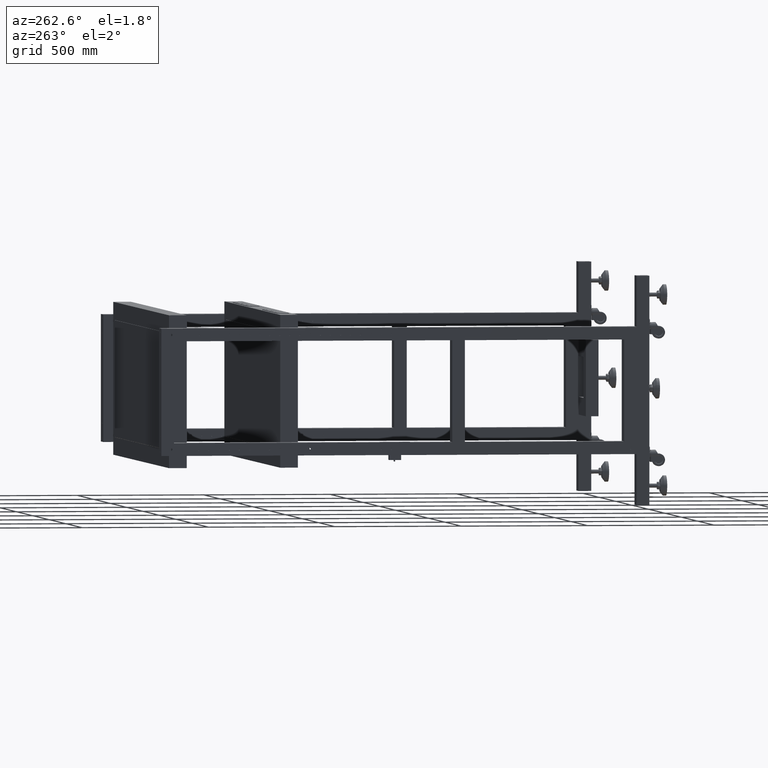
[diagram: clean part render]
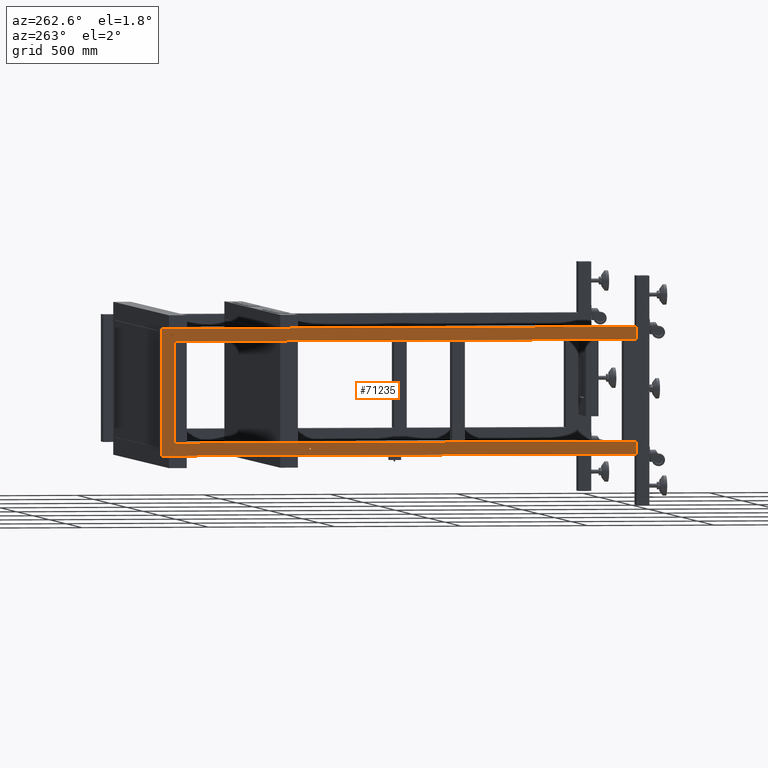
[diagram: same view with one face highlighted and labeled with its STEP entity id]
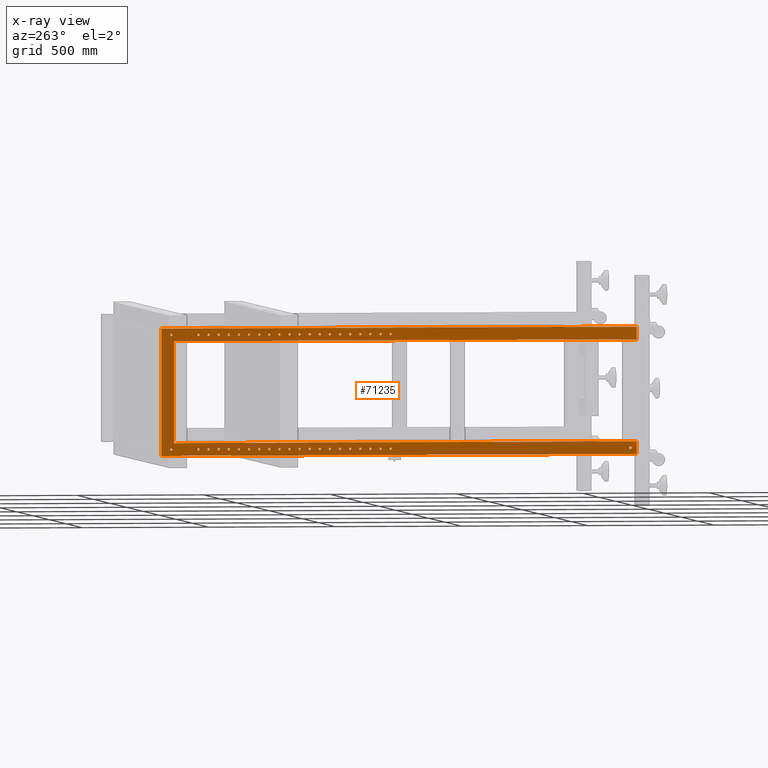
[diagram: x-ray of the same camera — body ghosted, the highlighted face saturated]
A machine part, auxiliary view. The second image highlights one B-rep face of the part: STEP entity #71235.
The next image is the same camera in x-ray: the body ghosted, the highlighted face saturated — about 0% of this face is hidden behind the body in this view.
In plain terms, the highlighted planar face has unit normal (-1, 0, 0).
Its self-contained STEP definition (entity closure, byte-faithful):
#17 = CIRCLE ( 'NONE', #17909, 4.500000000000003553 ) ;
#87 = EDGE_LOOP ( 'NONE', ( #40507, #77485, #27811, #19486, #76841, #42123, #8347, #46814 ) ) ;
#134 = CARTESIAN_POINT ( 'NONE',  ( -1338.172487437185055, 693.9410804020110390, 224.9999999999985789 ) ) ;
#276 = ORIENTED_EDGE ( 'NONE', *, *, #68840, .T. ) ;
#319 = EDGE_CURVE ( 'NONE', #14134, #4145, #36325, .T. ) ;
#370 = CARTESIAN_POINT ( 'NONE',  ( -1338.172487437185055, 609.4410804020111527, 224.9999999999980389 ) ) ;
#460 = AXIS2_PLACEMENT_3D ( 'NONE', #1448, #66912, #12237 ) ;
#487 = DIRECTION ( 'NONE',  ( 0.000000000000000000, 1.000000000000000000, 0.000000000000000000 ) ) ;
#565 = CARTESIAN_POINT ( 'NONE',  ( -1338.172487437185055, 289.4410804020110959, 224.9999999999957936 ) ) ;
#701 = DIRECTION ( 'NONE',  ( 1.000000000000000000, 0.000000000000000000, 0.000000000000000000 ) ) ;
#790 = AXIS2_PLACEMENT_3D ( 'NONE', #36375, #61474, #67881 ) ;
#910 = DIRECTION ( 'NONE',  ( 0.000000000000000000, 0.000000000000000000, -1.000000000000000000 ) ) ;
#923 = CARTESIAN_POINT ( 'NONE',  ( -1338.172487437185055, 209.4410804020110390, -220.5000000000000000 ) ) ;
#949 = CIRCLE ( 'NONE', #25163, 4.500000000000003553 ) ;
#956 = CARTESIAN_POINT ( 'NONE',  ( -1338.172487437185055, 489.4410804020110390, -225.0000000000000000 ) ) ;
#957 = CARTESIAN_POINT ( 'NONE',  ( -1338.172487437185055, 209.4410804020110390, -229.5000000000000000 ) ) ;
#1107 = VERTEX_POINT ( 'NONE', #72759 ) ;
#1336 = CARTESIAN_POINT ( 'NONE',  ( -1338.172487437185055, 769.4410804020110390, -220.5000000000000000 ) ) ;
#1360 = CARTESIAN_POINT ( 'NONE',  ( -1338.172487437185055, 649.4410804020110390, 224.9999999999983231 ) ) ;
#1448 = CARTESIAN_POINT ( 'NONE',  ( -1338.172487437185055, 409.4410804020109822, -225.0000000000000000 ) ) ;
#1483 = DIRECTION ( 'NONE',  ( 1.000000000000000000, 0.000000000000000000, 0.000000000000000000 ) ) ;
#1513 = CIRCLE ( 'NONE', #42282, 4.500000000000003553 ) ;
#1756 = VERTEX_POINT ( 'NONE', #76576 ) ;
#1761 = CIRCLE ( 'NONE', #460, 4.500000000000003553 ) ;
#1979 = DIRECTION ( 'NONE',  ( 0.000000000000000000, 1.000000000000000000, 0.000000000000000000 ) ) ;
#2035 = EDGE_CURVE ( 'NONE', #66259, #57824, #51484, .T. ) ;
#2131 = ORIENTED_EDGE ( 'NONE', *, *, #26263, .T. ) ;
#2198 = ORIENTED_EDGE ( 'NONE', *, *, #3717, .T. ) ;
#2311 = DIRECTION ( 'NONE',  ( 0.000000000000000000, 1.000000000000000000, 0.000000000000000000 ) ) ;
#2385 = ORIENTED_EDGE ( 'NONE', *, *, #38125, .T. ) ;
#2392 = VERTEX_POINT ( 'NONE', #31363 ) ;
#2401 = CARTESIAN_POINT ( 'NONE',  ( -1338.172487437185055, 289.4410804020109822, -225.0000000000000000 ) ) ;
#2439 = DIRECTION ( 'NONE',  ( 0.000000000000000000, 1.000000000000000000, 0.000000000000000000 ) ) ;
#2471 = EDGE_CURVE ( 'NONE', #34427, #30807, #45405, .T. ) ;
#2515 = AXIS2_PLACEMENT_3D ( 'NONE', #47719, #53676, #41715 ) ;
#2576 = ORIENTED_EDGE ( 'NONE', *, *, #4255, .T. ) ;
#2623 = FACE_BOUND ( 'NONE', #7342, .T. ) ;
#2678 = CARTESIAN_POINT ( 'NONE',  ( -1338.172487437185055, 449.4410804020110390, -225.0000000000000000 ) ) ;
#2726 = VERTEX_POINT ( 'NONE', #29216 ) ;
#3030 = FACE_BOUND ( 'NONE', #49964, .T. ) ;
#3061 = VERTEX_POINT ( 'NONE', #75821 ) ;
#3090 = ORIENTED_EDGE ( 'NONE', *, *, #67169, .T. ) ;
#3121 = EDGE_CURVE ( 'NONE', #51565, #17314, #12103, .T. ) ;
#3129 = DIRECTION ( 'NONE',  ( 1.000000000000000000, 0.000000000000000000, -2.775557561562890365E-16 ) ) ;
#3295 = ORIENTED_EDGE ( 'NONE', *, *, #34002, .F. ) ;
#3311 = ORIENTED_EDGE ( 'NONE', *, *, #2471, .T. ) ;
#3430 = FACE_BOUND ( 'NONE', #44493, .T. ) ;
#3561 = DIRECTION ( 'NONE',  ( -1.000000000000000000, -5.551115123125780730E-16, 0.000000000000000000 ) ) ;
#3622 = ORIENTED_EDGE ( 'NONE', *, *, #42257, .F. ) ;
#3636 = EDGE_LOOP ( 'NONE', ( #56261, #75815 ) ) ;
#3675 = AXIS2_PLACEMENT_3D ( 'NONE', #2401, #25584, #31555 ) ;
#3717 = EDGE_CURVE ( 'NONE', #50556, #3824, #1761, .T. ) ;
#3766 = EDGE_CURVE ( 'NONE', #36843, #56206, #18635, .T. ) ;
#3824 = VERTEX_POINT ( 'NONE', #69255 ) ;
#3833 = VERTEX_POINT ( 'NONE', #75622 ) ;
#4073 = VERTEX_POINT ( 'NONE', #67203 ) ;
#4104 = CIRCLE ( 'NONE', #29628, 4.500000000000059508 ) ;
#4145 = VERTEX_POINT ( 'NONE', #12148 ) ;
#4184 = CARTESIAN_POINT ( 'NONE',  ( -1338.172487437186192, 996.4410804020111527, -225.0000000000000000 ) ) ;
#4210 = DIRECTION ( 'NONE',  ( 0.000000000000000000, 1.000000000000000000, 0.000000000000000000 ) ) ;
#4239 = VECTOR ( 'NONE', #44658, 1000.000000000000000 ) ;
#4255 = EDGE_CURVE ( 'NONE', #41761, #37265, #10767, .T. ) ;
#4287 = CARTESIAN_POINT ( 'NONE',  ( -1338.172487437185055, 809.4410804020111527, 224.9999999999994316 ) ) ;
#4347 = CIRCLE ( 'NONE', #36178, 4.500000000000059508 ) ;
#4352 = AXIS2_PLACEMENT_3D ( 'NONE', #42400, #12081, #36412 ) ;
#4450 = EDGE_LOOP ( 'NONE', ( #2131, #22477 ) ) ;
#4546 = CARTESIAN_POINT ( 'NONE',  ( -1338.172487437185055, 809.4410804020111527, 224.9999999999994316 ) ) ;
#4574 = VERTEX_POINT ( 'NONE', #14697 ) ;
#4848 = DIRECTION ( 'NONE',  ( 1.000000000000000000, 0.000000000000000000, -2.775557561562895295E-16 ) ) ;
#4924 = EDGE_CURVE ( 'NONE', #57824, #66259, #65606, .T. ) ;
#5061 = DIRECTION ( 'NONE',  ( 0.000000000000000000, 0.000000000000000000, -1.000000000000000000 ) ) ;
#5091 = CARTESIAN_POINT ( 'NONE',  ( -1338.172487437185055, 524.9410804020111527, 224.9999999999974705 ) ) ;
#5146 = CARTESIAN_POINT ( 'NONE',  ( -1338.172487437185055, 489.4410804020110390, -225.0000000000000000 ) ) ;
#5228 = DIRECTION ( 'NONE',  ( 0.000000000000000000, 0.000000000000000000, -1.000000000000000000 ) ) ;
#5439 = CARTESIAN_POINT ( 'NONE',  ( -1338.172487437185055, 129.4410804020110675, 224.9999999999946851 ) ) ;
#5474 = CIRCLE ( 'NONE', #32185, 4.500000000000059508 ) ;
#5540 = CIRCLE ( 'NONE', #36133, 4.500000000000059508 ) ;
#5563 = DIRECTION ( 'NONE',  ( 0.000000000000000000, 1.000000000000000000, 0.000000000000000000 ) ) ;
#5603 = CARTESIAN_POINT ( 'NONE',  ( -1338.172487437185055, 684.9410804020110390, 224.9999999999985789 ) ) ;
#5779 = AXIS2_PLACEMENT_3D ( 'NONE', #64827, #77566, #72380 ) ;
#5795 = DIRECTION ( 'NONE',  ( 1.000000000000000000, 0.000000000000000000, 0.000000000000000000 ) ) ;
#5848 = ORIENTED_EDGE ( 'NONE', *, *, #19793, .T. ) ;
#6274 = CARTESIAN_POINT ( 'NONE',  ( -1338.172487437186192, 1000.941080402011153, 224.9999999999999716 ) ) ;
#6295 = VERTEX_POINT ( 'NONE', #63539 ) ;
#6307 = EDGE_CURVE ( 'NONE', #36406, #44797, #28740, .T. ) ;
#6415 = DIRECTION ( 'NONE',  ( 0.000000000000000000, 0.000000000000000000, -1.000000000000000000 ) ) ;
#6439 = DIRECTION ( 'NONE',  ( 0.000000000000000000, 1.000000000000000000, 0.000000000000000000 ) ) ;
#6447 = CARTESIAN_POINT ( 'NONE',  ( -1338.172487437185055, 529.4410804020111527, -225.0000000000000000 ) ) ;
#6473 = ORIENTED_EDGE ( 'NONE', *, *, #32003, .T. ) ;
#6699 = VERTEX_POINT ( 'NONE', #50333 ) ;
#6716 = AXIS2_PLACEMENT_3D ( 'NONE', #9059, #39014, #2311 ) ;
#6849 = ORIENTED_EDGE ( 'NONE', *, *, #42458, .T. ) ;
#6935 = EDGE_CURVE ( 'NONE', #54562, #70596, #57636, .T. ) ;
#7067 = EDGE_CURVE ( 'NONE', #20176, #74152, #60980, .T. ) ;
#7081 = DIRECTION ( 'NONE',  ( 0.000000000000000000, 1.000000000000000000, 0.000000000000000000 ) ) ;
#7117 = CARTESIAN_POINT ( 'NONE',  ( -1338.172487437185055, 204.9410804020110959, 224.9999999999952252 ) ) ;
#7120 = EDGE_CURVE ( 'NONE', #78800, #77556, #56395, .T. ) ;
#7216 = DIRECTION ( 'NONE',  ( 1.000000000000000000, 0.000000000000000000, 0.000000000000000000 ) ) ;
#7281 = EDGE_CURVE ( 'NONE', #49363, #55326, #62754, .T. ) ;
#7328 = CIRCLE ( 'NONE', #39219, 4.499999999999948486 ) ;
#7342 = EDGE_LOOP ( 'NONE', ( #64826, #16299 ) ) ;
#7409 = CARTESIAN_POINT ( 'NONE',  ( -1338.172487437185055, 164.9410804020111527, 224.9999999999949409 ) ) ;
#7421 = FACE_BOUND ( 'NONE', #67639, .T. ) ;
#7559 = DIRECTION ( 'NONE',  ( -1.000000000000000000, -5.551115123125780730E-16, 0.000000000000000000 ) ) ;
#7806 = FACE_BOUND ( 'NONE', #50734, .T. ) ;
#7863 = AXIS2_PLACEMENT_3D ( 'NONE', #52090, #32161, #32561 ) ;
#7916 = VERTEX_POINT ( 'NONE', #44722 ) ;
#7945 = CARTESIAN_POINT ( 'NONE',  ( -1338.172487437185055, 329.4410804020110390, -225.0000000000000000 ) ) ;
#7991 = CARTESIAN_POINT ( 'NONE',  ( -1338.172487437185055, 769.4410804020110390, 224.9999999999991473 ) ) ;
#8078 = EDGE_LOOP ( 'NONE', ( #276, #25998 ) ) ;
#8195 = CARTESIAN_POINT ( 'NONE',  ( -1338.172487437185055, 289.4410804020109822, -229.5000000000000000 ) ) ;
#8204 = DIRECTION ( 'NONE',  ( 0.000000000000000000, 1.000000000000000000, 0.000000000000000000 ) ) ;
#8210 = FACE_BOUND ( 'NONE', #32441, .T. ) ;
#8249 = CARTESIAN_POINT ( 'NONE',  ( -1338.172487437185055, 813.9410804020110390, 224.9999999999994316 ) ) ;
#8345 = DIRECTION ( 'NONE',  ( 0.000000000000000000, 0.000000000000000000, -1.000000000000000000 ) ) ;
#8347 = ORIENTED_EDGE ( 'NONE', *, *, #21753, .F. ) ;
#8353 = ORIENTED_EDGE ( 'NONE', *, *, #77385, .T. ) ;
#8464 = AXIS2_PLACEMENT_3D ( 'NONE', #57345, #45777, #9454 ) ;
#8719 = CARTESIAN_POINT ( 'NONE',  ( -1338.172487437185055, 329.4410804020110390, -225.0000000000000000 ) ) ;
#8865 = CIRCLE ( 'NONE', #30519, 4.500000000000003553 ) ;
#9013 = CARTESIAN_POINT ( 'NONE',  ( -1338.172487437185055, 769.4410804020110390, -225.0000000000000000 ) ) ;
#9059 = CARTESIAN_POINT ( 'NONE',  ( -1338.172487437185055, 729.4410804020110390, 224.9999999999988631 ) ) ;
#9196 = EDGE_LOOP ( 'NONE', ( #6849, #41108 ) ) ;
#9287 = CARTESIAN_POINT ( 'NONE',  ( -1338.172487437185055, -819.5589195979888473, -219.5000000000000000 ) ) ;
#9302 = EDGE_LOOP ( 'NONE', ( #33191, #48135 ) ) ;
#9394 = EDGE_CURVE ( 'NONE', #44797, #36406, #21952, .T. ) ;
#9454 = DIRECTION ( 'NONE',  ( 0.000000000000000000, 1.000000000000000000, 0.000000000000000000 ) ) ;
#9520 = DIRECTION ( 'NONE',  ( 0.000000000000000000, 1.000000000000000000, 0.000000000000000000 ) ) ;
#9654 = EDGE_CURVE ( 'NONE', #3824, #50556, #15508, .T. ) ;
#9808 = DIRECTION ( 'NONE',  ( 1.224646799147351975E-16, 0.000000000000000000, 1.000000000000000000 ) ) ;
#9835 = VERTEX_POINT ( 'NONE', #34850 ) ;
#9865 = EDGE_CURVE ( 'NONE', #6699, #36537, #1513, .T. ) ;
#9890 = CARTESIAN_POINT ( 'NONE',  ( -1338.172487437185055, 489.4410804020110390, -229.5000000000000000 ) ) ;
#9983 = CARTESIAN_POINT ( 'NONE',  ( -1338.172487437185055, -819.5589195979888473, -230.5000000000000000 ) ) ;
#10092 = DIRECTION ( 'NONE',  ( 0.000000000000000000, 1.000000000000000000, 0.000000000000000000 ) ) ;
#10116 = DIRECTION ( 'NONE',  ( 1.000000000000000000, 0.000000000000000000, -2.775557561562890365E-16 ) ) ;
#10193 = EDGE_CURVE ( 'NONE', #62130, #50351, #27084, .T. ) ;
#10208 = AXIS2_PLACEMENT_3D ( 'NONE', #4184, #48064, #53639 ) ;
#10310 = CARTESIAN_POINT ( 'NONE',  ( -1338.172487437185055, 853.9410804020111527, 224.9999999999996874 ) ) ;
#10347 = CARTESIAN_POINT ( 'NONE',  ( -1338.172487437185055, 649.4410804020110390, -225.0000000000000000 ) ) ;
#10348 = CIRCLE ( 'NONE', #29506, 4.500000000000059508 ) ;
#10469 = ORIENTED_EDGE ( 'NONE', *, *, #54420, .T. ) ;
#10484 = DIRECTION ( 'NONE',  ( 1.000000000000000000, 0.000000000000000000, -2.775557561562890365E-16 ) ) ;
#10593 = AXIS2_PLACEMENT_3D ( 'NONE', #7945, #62212, #8345 ) ;
#10670 = CIRCLE ( 'NONE', #56523, 4.499999999999948486 ) ;
#10718 = AXIS2_PLACEMENT_3D ( 'NONE', #58375, #28068, #10092 ) ;
#10767 = CIRCLE ( 'NONE', #50262, 4.500000000000003553 ) ;
#10803 = CARTESIAN_POINT ( 'NONE',  ( -1338.172487437185055, 253.9410804020111243, 224.9999999999955094 ) ) ;
#10915 = AXIS2_PLACEMENT_3D ( 'NONE', #956, #73175, #42849 ) ;
#10964 = AXIS2_PLACEMENT_3D ( 'NONE', #69517, #50770, #69899 ) ;
#11170 = FACE_BOUND ( 'NONE', #27769, .T. ) ;
#11202 = EDGE_LOOP ( 'NONE', ( #2576, #21340 ) ) ;
#11360 = CIRCLE ( 'NONE', #53405, 4.500000000000003553 ) ;
#11413 = CARTESIAN_POINT ( 'NONE',  ( -1338.172487437185055, 453.9410804020110959, 224.9999999999969020 ) ) ;
#11479 = EDGE_CURVE ( 'NONE', #70306, #71237, #35797, .T. ) ;
#11635 = CIRCLE ( 'NONE', #43483, 4.500000000000003553 ) ;
#11652 = DIRECTION ( 'NONE',  ( 1.000000000000000000, 0.000000000000000000, 0.000000000000000000 ) ) ;
#11704 = CIRCLE ( 'NONE', #53792, 4.499999999999948486 ) ;
#11801 = VERTEX_POINT ( 'NONE', #34660 ) ;
#11865 = VECTOR ( 'NONE', #51833, 1000.000000000000000 ) ;
#11870 = LINE ( 'NONE', #31007, #32067 ) ;
#11929 = AXIS2_PLACEMENT_3D ( 'NONE', #13047, #67710, #74084 ) ;
#11978 = VERTEX_POINT ( 'NONE', #62893 ) ;
#12081 = DIRECTION ( 'NONE',  ( 1.000000000000000000, 0.000000000000000000, -2.775557561562890365E-16 ) ) ;
#12103 = CIRCLE ( 'NONE', #22313, 4.500000000000003553 ) ;
#12117 = ORIENTED_EDGE ( 'NONE', *, *, #16531, .T. ) ;
#12148 = CARTESIAN_POINT ( 'NONE',  ( -1338.172487437185055, 484.9410804020110959, 224.9999999999972147 ) ) ;
#12237 = DIRECTION ( 'NONE',  ( 0.000000000000000000, 0.000000000000000000, -1.000000000000000000 ) ) ;
#12410 = ORIENTED_EDGE ( 'NONE', *, *, #4924, .F. ) ;
#12462 = CARTESIAN_POINT ( 'NONE',  ( -1338.172487437185055, 889.4410804020110390, 224.9999999999999716 ) ) ;
#12595 = ORIENTED_EDGE ( 'NONE', *, *, #32358, .T. ) ;
#12699 = CARTESIAN_POINT ( 'NONE',  ( -1338.172487437185055, 569.4410804020111527, 224.9999999999977547 ) ) ;
#13026 = FACE_BOUND ( 'NONE', #58439, .T. ) ;
#13047 = CARTESIAN_POINT ( 'NONE',  ( -1338.172487437185055, 329.4410804020111527, 224.9999999999960778 ) ) ;
#13096 = DIRECTION ( 'NONE',  ( 0.000000000000000000, 1.000000000000000000, 0.000000000000000000 ) ) ;
#13241 = CARTESIAN_POINT ( 'NONE',  ( -1338.172487437185055, 533.9410804020110390, 224.9999999999974705 ) ) ;
#13308 = DIRECTION ( 'NONE',  ( 1.000000000000000000, 0.000000000000000000, 0.000000000000000000 ) ) ;
#13319 = DIRECTION ( 'NONE',  ( 1.000000000000000000, 0.000000000000000000, -2.775557561562890365E-16 ) ) ;
#13423 = FACE_BOUND ( 'NONE', #17295, .T. ) ;
#13448 = DIRECTION ( 'NONE',  ( 0.000000000000000000, 1.000000000000000000, 0.000000000000000000 ) ) ;
#13492 = CARTESIAN_POINT ( 'NONE',  ( -1338.172487437185055, 889.4410804020110390, -225.0000000000000000 ) ) ;
#13494 = AXIS2_PLACEMENT_3D ( 'NONE', #36747, #61071, #6415 ) ;
#13729 = CIRCLE ( 'NONE', #52005, 4.500000000000003553 ) ;
#13813 = FACE_BOUND ( 'NONE', #45764, .T. ) ;
#14134 = VERTEX_POINT ( 'NONE', #59066 ) ;
#14156 = ORIENTED_EDGE ( 'NONE', *, *, #65251, .T. ) ;
#14199 = FACE_BOUND ( 'NONE', #70803, .T. ) ;
#14342 = CARTESIAN_POINT ( 'NONE',  ( -1338.172487437186192, 996.4410804020111527, -225.0000000000000000 ) ) ;
#14697 = CARTESIAN_POINT ( 'NONE',  ( -1338.172487437185055, 489.4410804020110390, -220.5000000000000000 ) ) ;
#15165 = AXIS2_PLACEMENT_3D ( 'NONE', #5146, #35870, #60584 ) ;
#15441 = CIRCLE ( 'NONE', #70245, 4.500000000000059508 ) ;
#15508 = CIRCLE ( 'NONE', #20646, 4.500000000000003553 ) ;
#15534 = EDGE_CURVE ( 'NONE', #4145, #14134, #74088, .T. ) ;
#15572 = EDGE_CURVE ( 'NONE', #11801, #70041, #10348, .T. ) ;
#15626 = LINE ( 'NONE', #52326, #61192 ) ;
#15850 = DIRECTION ( 'NONE',  ( 1.000000000000000000, 0.000000000000000000, -2.775557561562890365E-16 ) ) ;
#16065 = CARTESIAN_POINT ( 'NONE',  ( -1338.172487437185055, 653.9410804020111527, 224.9999999999983231 ) ) ;
#16181 = CIRCLE ( 'NONE', #17444, 4.500000000000003553 ) ;
#16220 = DIRECTION ( 'NONE',  ( 1.000000000000000000, 0.000000000000000000, -2.775557561562890365E-16 ) ) ;
#16299 = ORIENTED_EDGE ( 'NONE', *, *, #55330, .T. ) ;
#16485 = CIRCLE ( 'NONE', #71260, 4.500000000000003553 ) ;
#16506 = CARTESIAN_POINT ( 'NONE',  ( -1338.172487437185055, 609.4410804020110390, -220.5000000000000000 ) ) ;
#16528 = EDGE_CURVE ( 'NONE', #76985, #62338, #4104, .T. ) ;
#16531 = EDGE_CURVE ( 'NONE', #57046, #23082, #74214, .T. ) ;
#16637 = AXIS2_PLACEMENT_3D ( 'NONE', #8719, #74980, #70169 ) ;
#16664 = AXIS2_PLACEMENT_3D ( 'NONE', #23543, #77766, #23924 ) ;
#16988 = ORIENTED_EDGE ( 'NONE', *, *, #19495, .T. ) ;
#17295 = EDGE_LOOP ( 'NONE', ( #26249, #27375 ) ) ;
#17314 = VERTEX_POINT ( 'NONE', #75977 ) ;
#17315 = DIRECTION ( 'NONE',  ( 0.000000000000000000, 1.000000000000000000, 0.000000000000000000 ) ) ;
#17348 = CARTESIAN_POINT ( 'NONE',  ( -1338.172487437185055, 609.4410804020110390, -225.0000000000000000 ) ) ;
#17374 = CIRCLE ( 'NONE', #40248, 4.499999999999948486 ) ;
#17444 = AXIS2_PLACEMENT_3D ( 'NONE', #46408, #19806, #26181 ) ;
#17679 = CIRCLE ( 'NONE', #35490, 4.499999999999948486 ) ;
#17730 = AXIS2_PLACEMENT_3D ( 'NONE', #17348, #46883, #66018 ) ;
#17783 = LINE ( 'NONE', #64489, #60324 ) ;
#17909 = AXIS2_PLACEMENT_3D ( 'NONE', #26863, #32464, #57970 ) ;
#17976 = CARTESIAN_POINT ( 'NONE',  ( -1338.172487437185055, 844.9410804020111527, 224.9999999999996874 ) ) ;
#18236 = AXIS2_PLACEMENT_3D ( 'NONE', #70871, #16220, #40542 ) ;
#18393 = CARTESIAN_POINT ( 'NONE',  ( -1338.172487437185055, 689.4410804020110390, -225.0000000000000000 ) ) ;
#18480 = DIRECTION ( 'NONE',  ( 0.000000000000000000, 1.000000000000000000, 0.000000000000000000 ) ) ;
#18561 = CARTESIAN_POINT ( 'NONE',  ( -1338.172487437185055, -844.5589195979889610, -200.0000000000000000 ) ) ;
#18635 = LINE ( 'NONE', #30976, #24666 ) ;
#18668 = EDGE_CURVE ( 'NONE', #28146, #1756, #74840, .T. ) ;
#18714 = DIRECTION ( 'NONE',  ( 0.000000000000000000, 0.000000000000000000, -1.000000000000000000 ) ) ;
#18855 = EDGE_LOOP ( 'NONE', ( #66266, #74177 ) ) ;
#18895 = EDGE_CURVE ( 'NONE', #36537, #6699, #13729, .T. ) ;
#19059 = CARTESIAN_POINT ( 'NONE',  ( -1338.172487437185055, 409.4410804020110959, 224.9999999999966178 ) ) ;
#19104 = CARTESIAN_POINT ( 'NONE',  ( -1338.172487437185055, -819.5589195979888473, -225.0000000000000000 ) ) ;
#19166 = AXIS2_PLACEMENT_3D ( 'NONE', #39271, #4848, #5228 ) ;
#19315 = CARTESIAN_POINT ( 'NONE',  ( -1338.172487437185055, 569.4410804020110390, -225.0000000000000000 ) ) ;
#19347 = CARTESIAN_POINT ( 'NONE',  ( -1338.172487437185055, 449.4410804020110390, -225.0000000000000000 ) ) ;
#19486 = ORIENTED_EDGE ( 'NONE', *, *, #58376, .F. ) ;
#19495 = EDGE_CURVE ( 'NONE', #62213, #38993, #17679, .T. ) ;
#19564 = LINE ( 'NONE', #31517, #4239 ) ;
#19793 = EDGE_CURVE ( 'NONE', #2726, #78490, #75005, .T. ) ;
#19806 = DIRECTION ( 'NONE',  ( 1.000000000000000000, 0.000000000000000000, -2.775557561562890365E-16 ) ) ;
#19840 = ORIENTED_EDGE ( 'NONE', *, *, #53741, .T. ) ;
#19908 = DIRECTION ( 'NONE',  ( 1.000000000000000000, 0.000000000000000000, 0.000000000000000000 ) ) ;
#20036 = DIRECTION ( 'NONE',  ( 1.000000000000000000, 0.000000000000000000, 0.000000000000000000 ) ) ;
#20101 = EDGE_CURVE ( 'NONE', #41702, #25078, #52107, .T. ) ;
#20107 = DIRECTION ( 'NONE',  ( 1.000000000000000000, 0.000000000000000000, 0.000000000000000000 ) ) ;
#20161 = CARTESIAN_POINT ( 'NONE',  ( -1338.172487437185055, 564.9410804020111527, 224.9999999999977547 ) ) ;
#20176 = VERTEX_POINT ( 'NONE', #77184 ) ;
#20198 = FACE_BOUND ( 'NONE', #23170, .T. ) ;
#20278 = DIRECTION ( 'NONE',  ( 1.000000000000000000, 0.000000000000000000, -2.775557561562895295E-16 ) ) ;
#20414 = DIRECTION ( 'NONE',  ( 1.000000000000000000, 0.000000000000000000, 0.000000000000000000 ) ) ;
#20552 = DIRECTION ( 'NONE',  ( 1.000000000000000000, 0.000000000000000000, 0.000000000000000000 ) ) ;
#20568 = CARTESIAN_POINT ( 'NONE',  ( -1338.172487437185055, 209.4410804020111527, 224.9999999999952252 ) ) ;
#20646 = AXIS2_PLACEMENT_3D ( 'NONE', #36964, #67692, #39229 ) ;
#20674 = EDGE_CURVE ( 'NONE', #9835, #78941, #8865, .T. ) ;
#20832 = EDGE_LOOP ( 'NONE', ( #49103, #68726 ) ) ;
#20911 = VERTEX_POINT ( 'NONE', #57807 ) ;
#20932 = ORIENTED_EDGE ( 'NONE', *, *, #15534, .T. ) ;
#21098 = DIRECTION ( 'NONE',  ( 0.000000000000000000, 1.000000000000000000, 0.000000000000000000 ) ) ;
#21121 = DIRECTION ( 'NONE',  ( 0.000000000000000000, 1.000000000000000000, 0.000000000000000000 ) ) ;
#21340 = ORIENTED_EDGE ( 'NONE', *, *, #63667, .T. ) ;
#21351 = ORIENTED_EDGE ( 'NONE', *, *, #74420, .T. ) ;
#21384 = FACE_BOUND ( 'NONE', #60770, .T. ) ;
#21387 = VERTEX_POINT ( 'NONE', #57702 ) ;
#21440 = EDGE_LOOP ( 'NONE', ( #10469, #55135 ) ) ;
#21459 = CARTESIAN_POINT ( 'NONE',  ( -1338.172487437185055, 369.4410804020110959, -225.0000000000000000 ) ) ;
#21494 = AXIS2_PLACEMENT_3D ( 'NONE', #4546, #71973, #17315 ) ;
#21664 = CIRCLE ( 'NONE', #31838, 4.499999999999893419 ) ;
#21753 = EDGE_CURVE ( 'NONE', #38844, #20176, #15626, .T. ) ;
#21952 = CIRCLE ( 'NONE', #70353, 4.500000000000003553 ) ;
#22123 = DIRECTION ( 'NONE',  ( 0.000000000000000000, 0.000000000000000000, -1.000000000000000000 ) ) ;
#22173 = ORIENTED_EDGE ( 'NONE', *, *, #77923, .T. ) ;
#22313 = AXIS2_PLACEMENT_3D ( 'NONE', #10347, #66603, #29911 ) ;
#22477 = ORIENTED_EDGE ( 'NONE', *, *, #32141, .T. ) ;
#22504 = CARTESIAN_POINT ( 'NONE',  ( -1338.172487437185055, 289.4410804020110959, 224.9999999999957936 ) ) ;
#22609 = ORIENTED_EDGE ( 'NONE', *, *, #72903, .T. ) ;
#22750 = CIRCLE ( 'NONE', #60985, 4.500000000000003553 ) ;
#23043 = CARTESIAN_POINT ( 'NONE',  ( -1338.172487437185055, 849.4410804020110390, -225.0000000000000000 ) ) ;
#23082 = VERTEX_POINT ( 'NONE', #58801 ) ;
#23131 = ORIENTED_EDGE ( 'NONE', *, *, #6307, .T. ) ;
#23170 = EDGE_LOOP ( 'NONE', ( #77162, #12117 ) ) ;
#23265 = CIRCLE ( 'NONE', #52513, 4.500000000000003553 ) ;
#23504 = CIRCLE ( 'NONE', #10718, 4.500000000000059508 ) ;
#23543 = CARTESIAN_POINT ( 'NONE',  ( -1338.172487437185055, 529.4410804020111527, 224.9999999999974705 ) ) ;
#23648 = CIRCLE ( 'NONE', #5779, 4.500000000000059508 ) ;
#23759 = CIRCLE ( 'NONE', #8464, 4.499999999999948486 ) ;
#23924 = DIRECTION ( 'NONE',  ( 0.000000000000000000, 1.000000000000000000, 0.000000000000000000 ) ) ;
#24238 = AXIS2_PLACEMENT_3D ( 'NONE', #69867, #63872, #51536 ) ;
#24317 = DIRECTION ( 'NONE',  ( 1.000000000000000000, 0.000000000000000000, 0.000000000000000000 ) ) ;
#24324 = EDGE_CURVE ( 'NONE', #67160, #28250, #23265, .T. ) ;
#24365 = CARTESIAN_POINT ( 'NONE',  ( -1338.172487437185055, 649.4410804020110390, 224.9999999999983231 ) ) ;
#24429 = AXIS2_PLACEMENT_3D ( 'NONE', #27504, #3561, #9520 ) ;
#24544 = EDGE_LOOP ( 'NONE', ( #70899, #52392 ) ) ;
#24666 = VECTOR ( 'NONE', #25018, 1000.000000000000000 ) ;
#24911 = DIRECTION ( 'NONE',  ( 0.000000000000000000, 1.000000000000000000, 0.000000000000000000 ) ) ;
#25018 = DIRECTION ( 'NONE',  ( -1.000000000000000078E-15, -1.000000000000000000, -0.000000000000000000 ) ) ;
#25078 = VERTEX_POINT ( 'NONE', #16506 ) ;
#25163 = AXIS2_PLACEMENT_3D ( 'NONE', #19347, #55646, #43276 ) ;
#25297 = CARTESIAN_POINT ( 'NONE',  ( -1338.172487437185055, 809.4410804020110390, -220.5000000000000000 ) ) ;
#25382 = CARTESIAN_POINT ( 'NONE',  ( -1338.172487437185055, 849.4410804020111527, 224.9999999999996874 ) ) ;
#25468 = DIRECTION ( 'NONE',  ( 1.000000000000000000, 0.000000000000000000, -2.775557561562890365E-16 ) ) ;
#25522 = ORIENTED_EDGE ( 'NONE', *, *, #69617, .F. ) ;
#25584 = DIRECTION ( 'NONE',  ( 1.000000000000000000, 0.000000000000000000, -2.775557561562890365E-16 ) ) ;
#25593 = CARTESIAN_POINT ( 'NONE',  ( -1338.172487437185055, 489.4410804020110959, 224.9999999999971863 ) ) ;
#25827 = AXIS2_PLACEMENT_3D ( 'NONE', #60597, #66216, #65838 ) ;
#25870 = VERTEX_POINT ( 'NONE', #71765 ) ;
#25998 = ORIENTED_EDGE ( 'NONE', *, *, #56006, .T. ) ;
#26018 = VERTEX_POINT ( 'NONE', #6274 ) ;
#26083 = ORIENTED_EDGE ( 'NONE', *, *, #49649, .T. ) ;
#26099 = CARTESIAN_POINT ( 'NONE',  ( -1338.172487437185055, 729.4410804020110390, -225.0000000000000000 ) ) ;
#26142 = AXIS2_PLACEMENT_3D ( 'NONE', #25593, #7216, #43950 ) ;
#26178 = CARTESIAN_POINT ( 'NONE',  ( -1338.172487437185055, 569.4410804020110390, -229.5000000000000000 ) ) ;
#26181 = DIRECTION ( 'NONE',  ( 0.000000000000000000, 0.000000000000000000, -1.000000000000000000 ) ) ;
#26230 = CARTESIAN_POINT ( 'NONE',  ( -1338.172487437185055, 129.4410804020110675, -229.5000000000000000 ) ) ;
#26244 = CARTESIAN_POINT ( 'NONE',  ( -1338.172487437185055, 249.4410804020110675, -225.0000000000000000 ) ) ;
#26249 = ORIENTED_EDGE ( 'NONE', *, *, #18895, .T. ) ;
#26263 = EDGE_CURVE ( 'NONE', #41238, #1107, #29686, .T. ) ;
#26379 = DIRECTION ( 'NONE',  ( 1.000000000000000000, 0.000000000000000000, 0.000000000000000000 ) ) ;
#26415 = ORIENTED_EDGE ( 'NONE', *, *, #60297, .T. ) ;
#26447 = CARTESIAN_POINT ( 'NONE',  ( -1338.172487437185055, 689.4410804020110390, -229.5000000000000000 ) ) ;
#26558 = CIRCLE ( 'NONE', #21494, 4.499999999999948486 ) ;
#26576 = FACE_BOUND ( 'NONE', #31757, .T. ) ;
#26665 = AXIS2_PLACEMENT_3D ( 'NONE', #14342, #7559, #38689 ) ;
#26863 = CARTESIAN_POINT ( 'NONE',  ( -1338.172487437185055, 209.4410804020110390, -225.0000000000000000 ) ) ;
#26910 = CIRCLE ( 'NONE', #76617, 4.499999999999948486 ) ;
#27084 = CIRCLE ( 'NONE', #66551, 4.499999999999948486 ) ;
#27099 = CIRCLE ( 'NONE', #60228, 4.499999999999948486 ) ;
#27375 = ORIENTED_EDGE ( 'NONE', *, *, #9865, .T. ) ;
#27448 = CARTESIAN_POINT ( 'NONE',  ( -1338.172487437185055, 133.9410804020111243, 224.9999999999946851 ) ) ;
#27497 = CARTESIAN_POINT ( 'NONE',  ( -1338.172487437185964, 986.4410804020109254, 250.0000000000000000 ) ) ;
#27504 = CARTESIAN_POINT ( 'NONE',  ( -1338.172487437186192, 996.4410804020111527, 224.9999999999999716 ) ) ;
#27613 = DIRECTION ( 'NONE',  ( 0.000000000000000000, 1.000000000000000000, 0.000000000000000000 ) ) ;
#27665 = CARTESIAN_POINT ( 'NONE',  ( -1338.172487437185055, 889.4410804020110390, -225.0000000000000000 ) ) ;
#27765 = FACE_BOUND ( 'NONE', #72555, .T. ) ;
#27769 = EDGE_LOOP ( 'NONE', ( #44733, #28751 ) ) ;
#27790 = EDGE_CURVE ( 'NONE', #23082, #57046, #26910, .T. ) ;
#27811 = ORIENTED_EDGE ( 'NONE', *, *, #3766, .T. ) ;
#27884 = DIRECTION ( 'NONE',  ( 1.000000000000000000, 0.000000000000000000, 0.000000000000000000 ) ) ;
#27886 = EDGE_CURVE ( 'NONE', #11978, #2392, #15441, .T. ) ;
#28050 = DIRECTION ( 'NONE',  ( 1.000000000000000000, 0.000000000000000000, 0.000000000000000000 ) ) ;
#28068 = DIRECTION ( 'NONE',  ( 1.000000000000000000, 0.000000000000000000, 0.000000000000000000 ) ) ;
#28125 = CARTESIAN_POINT ( 'NONE',  ( -1338.172487437185055, 733.9410804020111527, 224.9999999999988631 ) ) ;
#28146 = VERTEX_POINT ( 'NONE', #66621 ) ;
#28250 = VERTEX_POINT ( 'NONE', #50249 ) ;
#28458 = CARTESIAN_POINT ( 'NONE',  ( -1338.172487437185055, 689.4410804020111527, 224.9999999999985789 ) ) ;
#28528 = EDGE_LOOP ( 'NONE', ( #8353, #5848 ) ) ;
#28681 = LINE ( 'NONE', #27497, #11865 ) ;
#28740 = CIRCLE ( 'NONE', #74641, 4.500000000000003553 ) ;
#28751 = ORIENTED_EDGE ( 'NONE', *, *, #74582, .T. ) ;
#28966 = VERTEX_POINT ( 'NONE', #69476 ) ;
#28981 = EDGE_LOOP ( 'NONE', ( #74200, #40153 ) ) ;
#29106 = CARTESIAN_POINT ( 'NONE',  ( -1338.172487437185055, 173.9410804020110675, 224.9999999999949409 ) ) ;
#29133 = VERTEX_POINT ( 'NONE', #71045 ) ;
#29167 = DIRECTION ( 'NONE',  ( 1.000000000000000000, 0.000000000000000000, 0.000000000000000000 ) ) ;
#29184 = CARTESIAN_POINT ( 'NONE',  ( -1338.172487437185055, 324.9410804020110959, 224.9999999999960778 ) ) ;
#29216 = CARTESIAN_POINT ( 'NONE',  ( -1338.172487437185055, 124.9410804020111243, 224.9999999999946851 ) ) ;
#29294 = CARTESIAN_POINT ( 'NONE',  ( -1338.172487437185055, 413.9410804020111527, 224.9999999999966178 ) ) ;
#29483 = CIRCLE ( 'NONE', #74066, 4.500000000000003553 ) ;
#29506 = AXIS2_PLACEMENT_3D ( 'NONE', #33874, #27884, #21121 ) ;
#29518 = EDGE_LOOP ( 'NONE', ( #57586, #63511 ) ) ;
#29628 = AXIS2_PLACEMENT_3D ( 'NONE', #43969, #67115, #6439 ) ;
#29686 = CIRCLE ( 'NONE', #18236, 4.500000000000003553 ) ;
#29834 = VERTEX_POINT ( 'NONE', #71640 ) ;
#29911 = DIRECTION ( 'NONE',  ( 0.000000000000000000, 0.000000000000000000, -1.000000000000000000 ) ) ;
#30149 = DIRECTION ( 'NONE',  ( 0.000000000000000000, 1.000000000000000000, 0.000000000000000000 ) ) ;
#30244 = VERTEX_POINT ( 'NONE', #17976 ) ;
#30325 = EDGE_LOOP ( 'NONE', ( #21351, #26415 ) ) ;
#30519 = AXIS2_PLACEMENT_3D ( 'NONE', #18393, #78214, #41920 ) ;
#30584 = VERTEX_POINT ( 'NONE', #33067 ) ;
#30639 = DIRECTION ( 'NONE',  ( 0.000000000000000000, 0.000000000000000000, -1.000000000000000000 ) ) ;
#30807 = VERTEX_POINT ( 'NONE', #73316 ) ;
#30829 = CARTESIAN_POINT ( 'NONE',  ( -1338.172487437185055, 609.4410804020110390, -229.5000000000000000 ) ) ;
#30851 = DIRECTION ( 'NONE',  ( 0.000000000000000000, 1.000000000000000000, 0.000000000000000000 ) ) ;
#30875 = AXIS2_PLACEMENT_3D ( 'NONE', #62118, #49019, #7081 ) ;
#30899 = EDGE_CURVE ( 'NONE', #62338, #76985, #5474, .T. ) ;
#30965 = DIRECTION ( 'NONE',  ( 0.000000000000000000, 0.000000000000000000, -1.000000000000000000 ) ) ;
#30976 = CARTESIAN_POINT ( 'NONE',  ( -1338.172487437185055, 986.4410804020136538, 199.9999999999999716 ) ) ;
#31007 = CARTESIAN_POINT ( 'NONE',  ( -1338.172487437185055, -844.5589195979888473, 199.9999999999999716 ) ) ;
#31067 = DIRECTION ( 'NONE',  ( 0.000000000000000000, 0.000000000000000000, 1.000000000000000000 ) ) ;
#31124 = EDGE_CURVE ( 'NONE', #38844, #71572, #17783, .T. ) ;
#31359 = VECTOR ( 'NONE', #57138, 1000.000000000000000 ) ;
#31363 = CARTESIAN_POINT ( 'NONE',  ( -1338.172487437185055, 373.9410804020111527, 224.9999999999963336 ) ) ;
#31387 = FACE_BOUND ( 'NONE', #58418, .T. ) ;
#31476 = AXIS2_PLACEMENT_3D ( 'NONE', #21459, #34220, #65339 ) ;
#31517 = CARTESIAN_POINT ( 'NONE',  ( -1338.172487437185964, 986.4410804020109254, 248.0000000000000000 ) ) ;
#31555 = DIRECTION ( 'NONE',  ( 0.000000000000000000, 0.000000000000000000, -1.000000000000000000 ) ) ;
#31690 = CIRCLE ( 'NONE', #3675, 4.499999999999893419 ) ;
#31700 = VERTEX_POINT ( 'NONE', #923 ) ;
#31723 = CARTESIAN_POINT ( 'NONE',  ( -1338.172487437186192, 1000.941080402011153, -225.0000000000000000 ) ) ;
#31757 = EDGE_LOOP ( 'NONE', ( #36070, #65237 ) ) ;
#31772 = FACE_BOUND ( 'NONE', #41350, .T. ) ;
#31838 = AXIS2_PLACEMENT_3D ( 'NONE', #32403, #48805, #910 ) ;
#31853 = AXIS2_PLACEMENT_3D ( 'NONE', #20568, #63626, #69244 ) ;
#31860 = DIRECTION ( 'NONE',  ( 0.000000000000000000, 1.000000000000000000, 0.000000000000000000 ) ) ;
#31901 = CIRCLE ( 'NONE', #19166, 4.500000000000003553 ) ;
#32003 = EDGE_CURVE ( 'NONE', #2392, #11978, #23504, .T. ) ;
#32067 = VECTOR ( 'NONE', #72899, 1000.000000000000000 ) ;
#32141 = EDGE_CURVE ( 'NONE', #1107, #41238, #38748, .T. ) ;
#32161 = DIRECTION ( 'NONE',  ( -1.000000000000000000, 0.000000000000000000, 1.224646799147351975E-16 ) ) ;
#32185 = AXIS2_PLACEMENT_3D ( 'NONE', #19059, #1483, #13448 ) ;
#32358 = EDGE_CURVE ( 'NONE', #30807, #34427, #48456, .T. ) ;
#32403 = CARTESIAN_POINT ( 'NONE',  ( -1338.172487437185055, 249.4410804020110675, -225.0000000000000000 ) ) ;
#32404 = CIRCLE ( 'NONE', #36207, 4.499999999999948486 ) ;
#32441 = EDGE_LOOP ( 'NONE', ( #37373, #67912 ) ) ;
#32464 = DIRECTION ( 'NONE',  ( 1.000000000000000000, 0.000000000000000000, -2.775557561562890365E-16 ) ) ;
#32561 = DIRECTION ( 'NONE',  ( -1.224646799147351975E-16, 0.000000000000000000, -1.000000000000000000 ) ) ;
#32596 = CARTESIAN_POINT ( 'NONE',  ( -1338.172487437185055, 849.4410804020110390, -229.5000000000000000 ) ) ;
#32738 = DIRECTION ( 'NONE',  ( 0.000000000000000000, 1.000000000000000000, 0.000000000000000000 ) ) ;
#33067 = CARTESIAN_POINT ( 'NONE',  ( -1338.172487437185055, 889.4410804020110390, -220.5000000000000000 ) ) ;
#33191 = ORIENTED_EDGE ( 'NONE', *, *, #35573, .T. ) ;
#33449 = CIRCLE ( 'NONE', #38562, 4.499999999999948486 ) ;
#33649 = DIRECTION ( 'NONE',  ( 0.000000000000000000, 0.000000000000000000, -1.000000000000000000 ) ) ;
#33671 = EDGE_CURVE ( 'NONE', #25870, #63362, #27099, .T. ) ;
#33874 = CARTESIAN_POINT ( 'NONE',  ( -1338.172487437185055, 209.4410804020111527, 224.9999999999952252 ) ) ;
#33998 = ORIENTED_EDGE ( 'NONE', *, *, #46537, .T. ) ;
#34002 = EDGE_CURVE ( 'NONE', #69729, #26018, #76693, .T. ) ;
#34109 = CARTESIAN_POINT ( 'NONE',  ( -1338.172487437185055, -819.5589195979888473, -225.0000000000000000 ) ) ;
#34209 = DIRECTION ( 'NONE',  ( 1.000000000000000000, 0.000000000000000000, 0.000000000000000000 ) ) ;
#34220 = DIRECTION ( 'NONE',  ( 1.000000000000000000, 0.000000000000000000, -2.775557561562890365E-16 ) ) ;
#34281 = VERTEX_POINT ( 'NONE', #54574 ) ;
#34355 = VERTEX_POINT ( 'NONE', #32596 ) ;
#34360 = DIRECTION ( 'NONE',  ( 1.000000000000000000, 0.000000000000000000, -2.775557561562895295E-16 ) ) ;
#34427 = VERTEX_POINT ( 'NONE', #26230 ) ;
#34499 = DIRECTION ( 'NONE',  ( 0.000000000000000000, 0.000000000000000000, 1.000000000000000000 ) ) ;
#34660 = CARTESIAN_POINT ( 'NONE',  ( -1338.172487437185055, 213.9410804020110959, 224.9999999999952252 ) ) ;
#34735 = DIRECTION ( 'NONE',  ( 1.000000000000000000, 0.000000000000000000, -2.775557561562890365E-16 ) ) ;
#34772 = VECTOR ( 'NONE', #47081, 1000.000000000000000 ) ;
#34850 = CARTESIAN_POINT ( 'NONE',  ( -1338.172487437185055, 689.4410804020110390, -220.5000000000000000 ) ) ;
#35490 = AXIS2_PLACEMENT_3D ( 'NONE', #12699, #66983, #13096 ) ;
#35573 = EDGE_CURVE ( 'NONE', #41402, #41246, #61587, .T. ) ;
#35757 = ORIENTED_EDGE ( 'NONE', *, *, #27886, .T. ) ;
#35797 = CIRCLE ( 'NONE', #72762, 4.500000000000059508 ) ;
#35870 = DIRECTION ( 'NONE',  ( 1.000000000000000000, 0.000000000000000000, -2.775557561562890365E-16 ) ) ;
#35952 = VERTEX_POINT ( 'NONE', #47671 ) ;
#36054 = ORIENTED_EDGE ( 'NONE', *, *, #40120, .T. ) ;
#36070 = ORIENTED_EDGE ( 'NONE', *, *, #51200, .T. ) ;
#36133 = AXIS2_PLACEMENT_3D ( 'NONE', #48916, #5795, #30149 ) ;
#36178 = AXIS2_PLACEMENT_3D ( 'NONE', #77341, #53795, #58203 ) ;
#36207 = AXIS2_PLACEMENT_3D ( 'NONE', #50870, #20552, #75197 ) ;
#36265 = DIRECTION ( 'NONE',  ( -1.000000000000000000, 0.000000000000000000, 1.224646799147353947E-16 ) ) ;
#36307 = AXIS2_PLACEMENT_3D ( 'NONE', #34109, #64819, #34499 ) ;
#36320 = DIRECTION ( 'NONE',  ( 0.000000000000000000, 1.000000000000000000, 0.000000000000000000 ) ) ;
#36325 = CIRCLE ( 'NONE', #26142, 4.500000000000003553 ) ;
#36375 = CARTESIAN_POINT ( 'NONE',  ( -1338.172487437185055, 169.4410804020111243, 224.9999999999949409 ) ) ;
#36406 = VERTEX_POINT ( 'NONE', #41184 ) ;
#36412 = DIRECTION ( 'NONE',  ( 0.000000000000000000, 0.000000000000000000, -1.000000000000000000 ) ) ;
#36537 = VERTEX_POINT ( 'NONE', #65929 ) ;
#36549 = CIRCLE ( 'NONE', #77323, 4.499999999999948486 ) ;
#36747 = CARTESIAN_POINT ( 'NONE',  ( -1338.172487437185055, 729.4410804020110390, -225.0000000000000000 ) ) ;
#36786 = VERTEX_POINT ( 'NONE', #29106 ) ;
#36787 = ORIENTED_EDGE ( 'NONE', *, *, #11479, .T. ) ;
#36825 = CARTESIAN_POINT ( 'NONE',  ( -1338.172487437185055, 609.4410804020111527, 224.9999999999980389 ) ) ;
#36843 = VERTEX_POINT ( 'NONE', #41485 ) ;
#36964 = CARTESIAN_POINT ( 'NONE',  ( -1338.172487437185055, 409.4410804020109822, -225.0000000000000000 ) ) ;
#36966 = CARTESIAN_POINT ( 'NONE',  ( -1338.172487437185055, 884.9410804020111527, 224.9999999999999716 ) ) ;
#37219 = CARTESIAN_POINT ( 'NONE',  ( -1338.172487437185055, 809.4410804020110390, -229.5000000000000000 ) ) ;
#37234 = EDGE_CURVE ( 'NONE', #3061, #42669, #68154, .T. ) ;
#37265 = VERTEX_POINT ( 'NONE', #78447 ) ;
#37373 = ORIENTED_EDGE ( 'NONE', *, *, #41492, .T. ) ;
#37484 = VERTEX_POINT ( 'NONE', #7409 ) ;
#37494 = DIRECTION ( 'NONE',  ( 1.000000000000000000, 0.000000000000000000, 0.000000000000000000 ) ) ;
#37530 = VERTEX_POINT ( 'NONE', #59534 ) ;
#38125 = EDGE_CURVE ( 'NONE', #37484, #36786, #72145, .T. ) ;
#38145 = FACE_BOUND ( 'NONE', #54800, .T. ) ;
#38541 = FACE_BOUND ( 'NONE', #24544, .T. ) ;
#38562 = AXIS2_PLACEMENT_3D ( 'NONE', #63862, #20414, #2439 ) ;
#38689 = DIRECTION ( 'NONE',  ( 0.000000000000000000, -1.000000000000000000, 0.000000000000000000 ) ) ;
#38748 = CIRCLE ( 'NONE', #4352, 4.500000000000003553 ) ;
#38844 = VERTEX_POINT ( 'NONE', #51696 ) ;
#38936 = FACE_BOUND ( 'NONE', #9196, .T. ) ;
#38993 = VERTEX_POINT ( 'NONE', #47293 ) ;
#39014 = DIRECTION ( 'NONE',  ( 1.000000000000000000, 0.000000000000000000, 0.000000000000000000 ) ) ;
#39166 = ORIENTED_EDGE ( 'NONE', *, *, #9654, .T. ) ;
#39182 = CARTESIAN_POINT ( 'NONE',  ( -1338.172487437185055, -844.5589195979889610, -200.0000000000000000 ) ) ;
#39185 = AXIS2_PLACEMENT_3D ( 'NONE', #36825, #61149, #30851 ) ;
#39219 = AXIS2_PLACEMENT_3D ( 'NONE', #1360, #20107, #75934 ) ;
#39229 = DIRECTION ( 'NONE',  ( 0.000000000000000000, 0.000000000000000000, -1.000000000000000000 ) ) ;
#39271 = CARTESIAN_POINT ( 'NONE',  ( -1338.172487437185055, 809.4410804020110390, -225.0000000000000000 ) ) ;
#39318 = FACE_BOUND ( 'NONE', #29518, .T. ) ;
#39559 = EDGE_CURVE ( 'NONE', #50351, #62130, #47946, .T. ) ;
#39708 = FACE_BOUND ( 'NONE', #40434, .T. ) ;
#39932 = CIRCLE ( 'NONE', #10593, 4.499999999999893419 ) ;
#40008 = AXIS2_PLACEMENT_3D ( 'NONE', #40460, #10116, #22123 ) ;
#40120 = EDGE_CURVE ( 'NONE', #4073, #7916, #949, .T. ) ;
#40153 = ORIENTED_EDGE ( 'NONE', *, *, #39559, .T. ) ;
#40248 = AXIS2_PLACEMENT_3D ( 'NONE', #7991, #26379, #32738 ) ;
#40338 = CARTESIAN_POINT ( 'NONE',  ( -1338.172487437185055, 769.4410804020110390, -225.0000000000000000 ) ) ;
#40434 = EDGE_LOOP ( 'NONE', ( #65682, #63073 ) ) ;
#40460 = CARTESIAN_POINT ( 'NONE',  ( -1338.172487437185055, 209.4410804020110390, -225.0000000000000000 ) ) ;
#40507 = ORIENTED_EDGE ( 'NONE', *, *, #78915, .T. ) ;
#40542 = DIRECTION ( 'NONE',  ( 0.000000000000000000, 0.000000000000000000, -1.000000000000000000 ) ) ;
#40742 = DIRECTION ( 'NONE',  ( 0.000000000000000000, 1.000000000000000000, 0.000000000000000000 ) ) ;
#40792 = VERTEX_POINT ( 'NONE', #10803 ) ;
#40877 = VERTEX_POINT ( 'NONE', #5603 ) ;
#41108 = ORIENTED_EDGE ( 'NONE', *, *, #3121, .T. ) ;
#41184 = CARTESIAN_POINT ( 'NONE',  ( -1338.172487437185055, 569.4410804020110390, -220.5000000000000000 ) ) ;
#41238 = VERTEX_POINT ( 'NONE', #56045 ) ;
#41246 = VERTEX_POINT ( 'NONE', #47828 ) ;
#41316 = ORIENTED_EDGE ( 'NONE', *, *, #48526, .T. ) ;
#41350 = EDGE_LOOP ( 'NONE', ( #44437, #55508 ) ) ;
#41402 = VERTEX_POINT ( 'NONE', #75969 ) ;
#41485 = CARTESIAN_POINT ( 'NONE',  ( -1338.172487437185964, 986.4410804020109254, 199.9999999999999716 ) ) ;
#41492 = EDGE_CURVE ( 'NONE', #42669, #3061, #26558, .T. ) ;
#41702 = VERTEX_POINT ( 'NONE', #30829 ) ;
#41715 = DIRECTION ( 'NONE',  ( 0.000000000000000000, 1.000000000000000000, 0.000000000000000000 ) ) ;
#41761 = VERTEX_POINT ( 'NONE', #69503 ) ;
#41910 = CIRCLE ( 'NONE', #72482, 4.500000000000059508 ) ;
#41920 = DIRECTION ( 'NONE',  ( 0.000000000000000000, 0.000000000000000000, -1.000000000000000000 ) ) ;
#41997 = CIRCLE ( 'NONE', #26665, 4.499999999999948486 ) ;
#42002 = DIRECTION ( 'NONE',  ( 0.000000000000000000, 0.000000000000000000, -1.000000000000000000 ) ) ;
#42123 = ORIENTED_EDGE ( 'NONE', *, *, #7067, .F. ) ;
#42257 = EDGE_CURVE ( 'NONE', #61023, #29834, #41997, .T. ) ;
#42282 = AXIS2_PLACEMENT_3D ( 'NONE', #6447, #48384, #73108 ) ;
#42325 = VERTEX_POINT ( 'NONE', #10310 ) ;
#42400 = CARTESIAN_POINT ( 'NONE',  ( -1338.172487437185055, 169.4410804020110106, -225.0000000000000000 ) ) ;
#42458 = EDGE_CURVE ( 'NONE', #17314, #51565, #16485, .T. ) ;
#42532 = DIRECTION ( 'NONE',  ( 1.000000000000000000, 0.000000000000000000, 0.000000000000000000 ) ) ;
#42669 = VERTEX_POINT ( 'NONE', #8249 ) ;
#42849 = DIRECTION ( 'NONE',  ( 0.000000000000000000, 0.000000000000000000, -1.000000000000000000 ) ) ;
#42862 = AXIS2_PLACEMENT_3D ( 'NONE', #48780, #51414, #21098 ) ;
#42959 = DIRECTION ( 'NONE',  ( 1.000000000000000000, 0.000000000000000000, -2.775557561562890365E-16 ) ) ;
#42987 = EDGE_LOOP ( 'NONE', ( #22173, #2385 ) ) ;
#43149 = EDGE_CURVE ( 'NONE', #77556, #78800, #31901, .T. ) ;
#43276 = DIRECTION ( 'NONE',  ( 0.000000000000000000, 0.000000000000000000, -1.000000000000000000 ) ) ;
#43357 = FACE_BOUND ( 'NONE', #48945, .T. ) ;
#43453 = CARTESIAN_POINT ( 'NONE',  ( -1338.172487437185055, 169.4410804020111243, 224.9999999999949409 ) ) ;
#43483 = AXIS2_PLACEMENT_3D ( 'NONE', #58648, #34735, #47498 ) ;
#43950 = DIRECTION ( 'NONE',  ( 0.000000000000000000, 1.000000000000000000, 0.000000000000000000 ) ) ;
#43969 = CARTESIAN_POINT ( 'NONE',  ( -1338.172487437185055, 409.4410804020110959, 224.9999999999966178 ) ) ;
#43972 = VERTEX_POINT ( 'NONE', #957 ) ;
#44053 = DIRECTION ( 'NONE',  ( 1.000000000000000000, 0.000000000000000000, -2.775557561562895295E-16 ) ) ;
#44173 = CARTESIAN_POINT ( 'NONE',  ( -1338.172487437185055, 569.4410804020111527, 224.9999999999977547 ) ) ;
#44437 = ORIENTED_EDGE ( 'NONE', *, *, #78898, .T. ) ;
#44493 = EDGE_LOOP ( 'NONE', ( #3295, #62600 ) ) ;
#44532 = FACE_BOUND ( 'NONE', #8078, .T. ) ;
#44658 = DIRECTION ( 'NONE',  ( 0.000000000000000000, 0.000000000000000000, 1.000000000000000000 ) ) ;
#44722 = CARTESIAN_POINT ( 'NONE',  ( -1338.172487437185055, 449.4410804020110390, -229.5000000000000000 ) ) ;
#44728 = AXIS2_PLACEMENT_3D ( 'NONE', #27665, #69553, #33649 ) ;
#44733 = ORIENTED_EDGE ( 'NONE', *, *, #55971, .T. ) ;
#44797 = VERTEX_POINT ( 'NONE', #26178 ) ;
#44974 = ORIENTED_EDGE ( 'NONE', *, *, #7281, .T. ) ;
#45088 = AXIS2_PLACEMENT_3D ( 'NONE', #26244, #25468, #30639 ) ;
#45405 = CIRCLE ( 'NONE', #65821, 4.500000000000003553 ) ;
#45764 = EDGE_LOOP ( 'NONE', ( #14156, #67304 ) ) ;
#45777 = DIRECTION ( 'NONE',  ( 1.000000000000000000, 0.000000000000000000, 0.000000000000000000 ) ) ;
#45914 = DIRECTION ( 'NONE',  ( 1.000000000000000000, 0.000000000000000000, 0.000000000000000000 ) ) ;
#46105 = FACE_BOUND ( 'NONE', #3636, .T. ) ;
#46408 = CARTESIAN_POINT ( 'NONE',  ( -1338.172487437185055, 849.4410804020110390, -225.0000000000000000 ) ) ;
#46537 = EDGE_CURVE ( 'NONE', #76343, #40877, #60772, .T. ) ;
#46777 = DIRECTION ( 'NONE',  ( 0.000000000000000000, 0.000000000000000000, -1.000000000000000000 ) ) ;
#46814 = ORIENTED_EDGE ( 'NONE', *, *, #31124, .T. ) ;
#46883 = DIRECTION ( 'NONE',  ( 1.000000000000000000, 0.000000000000000000, -2.775557561562890365E-16 ) ) ;
#47081 = DIRECTION ( 'NONE',  ( 0.000000000000000000, 0.000000000000000000, 1.000000000000000000 ) ) ;
#47293 = CARTESIAN_POINT ( 'NONE',  ( -1338.172487437185055, 573.9410804020110390, 224.9999999999977547 ) ) ;
#47498 = DIRECTION ( 'NONE',  ( 0.000000000000000000, 0.000000000000000000, -1.000000000000000000 ) ) ;
#47671 = CARTESIAN_POINT ( 'NONE',  ( -1338.172487437185055, 369.4410804020110959, -220.5000000000000000 ) ) ;
#47719 = CARTESIAN_POINT ( 'NONE',  ( -1338.172487437185055, 329.4410804020111527, 224.9999999999960778 ) ) ;
#47793 = EDGE_CURVE ( 'NONE', #25078, #41702, #22750, .T. ) ;
#47828 = CARTESIAN_POINT ( 'NONE',  ( -1338.172487437185055, 249.4410804020110675, -220.5000000000000000 ) ) ;
#47836 = AXIS2_PLACEMENT_3D ( 'NONE', #2678, #15850, #51366 ) ;
#47941 = ORIENTED_EDGE ( 'NONE', *, *, #54643, .T. ) ;
#47946 = CIRCLE ( 'NONE', #42862, 4.499999999999948486 ) ;
#48064 = DIRECTION ( 'NONE',  ( -1.000000000000000000, -5.551115123125780730E-16, 0.000000000000000000 ) ) ;
#48135 = ORIENTED_EDGE ( 'NONE', *, *, #49106, .T. ) ;
#48182 = VERTEX_POINT ( 'NONE', #5091 ) ;
#48384 = DIRECTION ( 'NONE',  ( 1.000000000000000000, 0.000000000000000000, -2.775557561562890365E-16 ) ) ;
#48456 = CIRCLE ( 'NONE', #24238, 4.500000000000003553 ) ;
#48526 = EDGE_CURVE ( 'NONE', #61065, #3833, #49642, .T. ) ;
#48701 = DIRECTION ( 'NONE',  ( 1.000000000000000000, 0.000000000000000000, 0.000000000000000000 ) ) ;
#48714 = AXIS2_PLACEMENT_3D ( 'NONE', #55133, #11652, #487 ) ;
#48780 = CARTESIAN_POINT ( 'NONE',  ( -1338.172487437185055, 449.4410804020111527, 224.9999999999969020 ) ) ;
#48805 = DIRECTION ( 'NONE',  ( 1.000000000000000000, 0.000000000000000000, -2.775557561562890365E-16 ) ) ;
#48886 = ORIENTED_EDGE ( 'NONE', *, *, #76150, .T. ) ;
#48916 = CARTESIAN_POINT ( 'NONE',  ( -1338.172487437185055, 249.4410804020110675, 224.9999999999955094 ) ) ;
#48945 = EDGE_LOOP ( 'NONE', ( #2198, #39166 ) ) ;
#49019 = DIRECTION ( 'NONE',  ( 1.000000000000000000, 0.000000000000000000, 0.000000000000000000 ) ) ;
#49103 = ORIENTED_EDGE ( 'NONE', *, *, #7120, .T. ) ;
#49106 = EDGE_CURVE ( 'NONE', #41246, #41402, #21664, .T. ) ;
#49363 = VERTEX_POINT ( 'NONE', #60249 ) ;
#49642 = CIRCLE ( 'NONE', #2515, 4.500000000000059508 ) ;
#49649 = EDGE_CURVE ( 'NONE', #20911, #54532, #51032, .T. ) ;
#49964 = EDGE_LOOP ( 'NONE', ( #22609, #16988 ) ) ;
#50172 = ORIENTED_EDGE ( 'NONE', *, *, #51942, .T. ) ;
#50249 = CARTESIAN_POINT ( 'NONE',  ( -1338.172487437185055, 769.4410804020110390, -229.5000000000000000 ) ) ;
#50262 = AXIS2_PLACEMENT_3D ( 'NONE', #26099, #44053, #68382 ) ;
#50333 = CARTESIAN_POINT ( 'NONE',  ( -1338.172487437185055, 529.4410804020111527, -220.5000000000000000 ) ) ;
#50351 = VERTEX_POINT ( 'NONE', #73529 ) ;
#50524 = FACE_BOUND ( 'NONE', #20832, .T. ) ;
#50556 = VERTEX_POINT ( 'NONE', #58696 ) ;
#50734 = EDGE_LOOP ( 'NONE', ( #6473, #35757 ) ) ;
#50770 = DIRECTION ( 'NONE',  ( 1.000000000000000000, 0.000000000000000000, -2.775557561562890365E-16 ) ) ;
#50870 = CARTESIAN_POINT ( 'NONE',  ( -1338.172487437185055, 769.4410804020110390, 224.9999999999991473 ) ) ;
#51032 = CIRCLE ( 'NONE', #16637, 4.499999999999893419 ) ;
#51200 = EDGE_CURVE ( 'NONE', #42325, #30244, #65286, .T. ) ;
#51305 = PLANE ( 'NONE',  #7863 ) ;
#51366 = DIRECTION ( 'NONE',  ( 0.000000000000000000, 0.000000000000000000, -1.000000000000000000 ) ) ;
#51414 = DIRECTION ( 'NONE',  ( 1.000000000000000000, 0.000000000000000000, 0.000000000000000000 ) ) ;
#51484 = CIRCLE ( 'NONE', #57847, 5.500000000000087930 ) ;
#51536 = DIRECTION ( 'NONE',  ( 0.000000000000000000, 0.000000000000000000, -1.000000000000000000 ) ) ;
#51565 = VERTEX_POINT ( 'NONE', #52395 ) ;
#51696 = CARTESIAN_POINT ( 'NONE',  ( -1338.172487437185055, -844.5589195979889610, -250.0000000000000000 ) ) ;
#51833 = DIRECTION ( 'NONE',  ( 0.000000000000000000, -1.000000000000000000, 0.000000000000000000 ) ) ;
#51942 = EDGE_CURVE ( 'NONE', #28250, #67160, #71593, .T. ) ;
#52005 = AXIS2_PLACEMENT_3D ( 'NONE', #72289, #65114, #46777 ) ;
#52090 = CARTESIAN_POINT ( 'NONE',  ( -1338.172487437185055, -844.5589195979889610, -250.0000000000000000 ) ) ;
#52107 = CIRCLE ( 'NONE', #17730, 4.500000000000003553 ) ;
#52131 = CIRCLE ( 'NONE', #15165, 4.500000000000003553 ) ;
#52326 = CARTESIAN_POINT ( 'NONE',  ( -1338.172487437185055, -844.5589195979889610, -250.0000000000000000 ) ) ;
#52392 = ORIENTED_EDGE ( 'NONE', *, *, #33671, .T. ) ;
#52395 = CARTESIAN_POINT ( 'NONE',  ( -1338.172487437185055, 649.4410804020110390, -220.5000000000000000 ) ) ;
#52487 = DIRECTION ( 'NONE',  ( -1.000000000000000000, -5.551115123125780730E-16, 0.000000000000000000 ) ) ;
#52513 = AXIS2_PLACEMENT_3D ( 'NONE', #40338, #34360, #77424 ) ;
#52582 = AXIS2_PLACEMENT_3D ( 'NONE', #56975, #20278, #55801 ) ;
#53088 = CARTESIAN_POINT ( 'NONE',  ( -1338.172487437185055, 449.4410804020111527, 224.9999999999969020 ) ) ;
#53185 = CIRCLE ( 'NONE', #10964, 4.500000000000003553 ) ;
#53352 = CARTESIAN_POINT ( 'NONE',  ( -1338.172487437185055, 284.9410804020111527, 224.9999999999957936 ) ) ;
#53405 = AXIS2_PLACEMENT_3D ( 'NONE', #13492, #56570, #18714 ) ;
#53639 = DIRECTION ( 'NONE',  ( 0.000000000000000000, -1.000000000000000000, 0.000000000000000000 ) ) ;
#53676 = DIRECTION ( 'NONE',  ( 1.000000000000000000, 0.000000000000000000, 0.000000000000000000 ) ) ;
#53735 = DIRECTION ( 'NONE',  ( 1.000000000000000000, 0.000000000000000000, 0.000000000000000000 ) ) ;
#53741 = EDGE_CURVE ( 'NONE', #7916, #4073, #54190, .T. ) ;
#53792 = AXIS2_PLACEMENT_3D ( 'NONE', #77988, #52487, #4210 ) ;
#53795 = DIRECTION ( 'NONE',  ( 1.000000000000000000, 0.000000000000000000, 0.000000000000000000 ) ) ;
#53864 = FACE_OUTER_BOUND ( 'NONE', #87, .T. ) ;
#54190 = CIRCLE ( 'NONE', #47836, 4.500000000000003553 ) ;
#54353 = ORIENTED_EDGE ( 'NONE', *, *, #60111, .T. ) ;
#54420 = EDGE_CURVE ( 'NONE', #70596, #54562, #31690, .T. ) ;
#54532 = VERTEX_POINT ( 'NONE', #76577 ) ;
#54562 = VERTEX_POINT ( 'NONE', #64234 ) ;
#54574 = CARTESIAN_POINT ( 'NONE',  ( -1338.172487437185055, -844.5589195979888473, 249.9999999999999716 ) ) ;
#54643 = EDGE_CURVE ( 'NONE', #4574, #58199, #52131, .T. ) ;
#54663 = CARTESIAN_POINT ( 'NONE',  ( -1338.172487437185055, 489.4410804020110959, 224.9999999999971863 ) ) ;
#54800 = EDGE_LOOP ( 'NONE', ( #68725, #12410 ) ) ;
#55009 = CARTESIAN_POINT ( 'NONE',  ( -1338.172487437185964, 1036.441080402011039, 248.0000000000000000 ) ) ;
#55133 = CARTESIAN_POINT ( 'NONE',  ( -1338.172487437185055, 889.4410804020110390, 224.9999999999999716 ) ) ;
#55135 = ORIENTED_EDGE ( 'NONE', *, *, #6935, .T. ) ;
#55326 = VERTEX_POINT ( 'NONE', #28125 ) ;
#55330 = EDGE_CURVE ( 'NONE', #70041, #11801, #66272, .T. ) ;
#55475 = DIRECTION ( 'NONE',  ( 1.000000000000000000, 0.000000000000000000, -2.775557561562895295E-16 ) ) ;
#55508 = ORIENTED_EDGE ( 'NONE', *, *, #78561, .T. ) ;
#55646 = DIRECTION ( 'NONE',  ( 1.000000000000000000, 0.000000000000000000, -2.775557561562890365E-16 ) ) ;
#55742 = CIRCLE ( 'NONE', #60851, 4.499999999999948486 ) ;
#55801 = DIRECTION ( 'NONE',  ( 0.000000000000000000, 0.000000000000000000, -1.000000000000000000 ) ) ;
#55971 = EDGE_CURVE ( 'NONE', #43972, #31700, #17, .T. ) ;
#56006 = EDGE_CURVE ( 'NONE', #30584, #68616, #57412, .T. ) ;
#56045 = CARTESIAN_POINT ( 'NONE',  ( -1338.172487437185055, 169.4410804020110106, -229.5000000000000000 ) ) ;
#56111 = FACE_BOUND ( 'NONE', #18855, .T. ) ;
#56206 = VERTEX_POINT ( 'NONE', #61091 ) ;
#56261 = ORIENTED_EDGE ( 'NONE', *, *, #57664, .T. ) ;
#56395 = CIRCLE ( 'NONE', #52582, 4.500000000000003553 ) ;
#56523 = AXIS2_PLACEMENT_3D ( 'NONE', #44173, #701, #73695 ) ;
#56564 = EDGE_CURVE ( 'NONE', #78941, #9835, #11635, .T. ) ;
#56570 = DIRECTION ( 'NONE',  ( 1.000000000000000000, 0.000000000000000000, -2.775557561562890365E-16 ) ) ;
#56891 = CARTESIAN_POINT ( 'NONE',  ( -1338.172487437185055, 293.9410804020111527, 224.9999999999957936 ) ) ;
#56975 = CARTESIAN_POINT ( 'NONE',  ( -1338.172487437185055, 809.4410804020110390, -225.0000000000000000 ) ) ;
#57046 = VERTEX_POINT ( 'NONE', #36966 ) ;
#57138 = DIRECTION ( 'NONE',  ( 0.000000000000000000, 1.000000000000000000, 0.000000000000000000 ) ) ;
#57172 = AXIS2_PLACEMENT_3D ( 'NONE', #5439, #34209, #59315 ) ;
#57255 = ORIENTED_EDGE ( 'NONE', *, *, #64551, .T. ) ;
#57270 = FACE_BOUND ( 'NONE', #28528, .T. ) ;
#57345 = CARTESIAN_POINT ( 'NONE',  ( -1338.172487437185055, 729.4410804020110390, 224.9999999999988631 ) ) ;
#57412 = CIRCLE ( 'NONE', #44728, 4.500000000000003553 ) ;
#57586 = ORIENTED_EDGE ( 'NONE', *, *, #30899, .T. ) ;
#57636 = CIRCLE ( 'NONE', #25827, 4.499999999999893419 ) ;
#57664 = EDGE_CURVE ( 'NONE', #74773, #48182, #33449, .T. ) ;
#57670 = FACE_BOUND ( 'NONE', #11202, .T. ) ;
#57702 = CARTESIAN_POINT ( 'NONE',  ( -1338.172487437185055, 773.9410804020111527, 224.9999999999991473 ) ) ;
#57807 = CARTESIAN_POINT ( 'NONE',  ( -1338.172487437185055, 329.4410804020110390, -229.5000000000000000 ) ) ;
#57824 = VERTEX_POINT ( 'NONE', #9983 ) ;
#57847 = AXIS2_PLACEMENT_3D ( 'NONE', #19104, #36265, #31067 ) ;
#57970 = DIRECTION ( 'NONE',  ( 0.000000000000000000, 0.000000000000000000, -1.000000000000000000 ) ) ;
#58072 = FACE_BOUND ( 'NONE', #30325, .T. ) ;
#58162 = DIRECTION ( 'NONE',  ( 0.000000000000000000, 0.000000000000000000, -1.000000000000000000 ) ) ;
#58199 = VERTEX_POINT ( 'NONE', #9890 ) ;
#58203 = DIRECTION ( 'NONE',  ( 0.000000000000000000, 1.000000000000000000, 0.000000000000000000 ) ) ;
#58269 = AXIS2_PLACEMENT_3D ( 'NONE', #28458, #28050, #70341 ) ;
#58375 = CARTESIAN_POINT ( 'NONE',  ( -1338.172487437185055, 369.4410804020110959, 224.9999999999963336 ) ) ;
#58376 = EDGE_CURVE ( 'NONE', #34281, #56206, #11870, .T. ) ;
#58418 = EDGE_LOOP ( 'NONE', ( #64163, #23131 ) ) ;
#58439 = EDGE_LOOP ( 'NONE', ( #65393, #47941 ) ) ;
#58648 = CARTESIAN_POINT ( 'NONE',  ( -1338.172487437185055, 689.4410804020110390, -225.0000000000000000 ) ) ;
#58696 = CARTESIAN_POINT ( 'NONE',  ( -1338.172487437185055, 409.4410804020109822, -229.5000000000000000 ) ) ;
#58761 = CARTESIAN_POINT ( 'NONE',  ( -1338.172487437185055, 609.4410804020110390, -225.0000000000000000 ) ) ;
#58801 = CARTESIAN_POINT ( 'NONE',  ( -1338.172487437185055, 893.9410804020111527, 224.9999999999999716 ) ) ;
#59066 = CARTESIAN_POINT ( 'NONE',  ( -1338.172487437185055, 493.9410804020110959, 224.9999999999971863 ) ) ;
#59315 = DIRECTION ( 'NONE',  ( 0.000000000000000000, 1.000000000000000000, 0.000000000000000000 ) ) ;
#59534 = CARTESIAN_POINT ( 'NONE',  ( -1338.172487437185055, 244.9410804020111243, 224.9999999999955094 ) ) ;
#59698 = EDGE_LOOP ( 'NONE', ( #71609, #41316 ) ) ;
#59832 = FACE_BOUND ( 'NONE', #9302, .T. ) ;
#60111 = EDGE_CURVE ( 'NONE', #54532, #20911, #39932, .T. ) ;
#60228 = AXIS2_PLACEMENT_3D ( 'NONE', #24365, #29167, #40742 ) ;
#60249 = CARTESIAN_POINT ( 'NONE',  ( -1338.172487437185055, 724.9410804020111527, 224.9999999999988631 ) ) ;
#60297 = EDGE_CURVE ( 'NONE', #37530, #40792, #4347, .T. ) ;
#60324 = VECTOR ( 'NONE', #9808, 1000.000000000000000 ) ;
#60584 = DIRECTION ( 'NONE',  ( 0.000000000000000000, 0.000000000000000000, -1.000000000000000000 ) ) ;
#60597 = CARTESIAN_POINT ( 'NONE',  ( -1338.172487437185055, 289.4410804020109822, -225.0000000000000000 ) ) ;
#60620 = ORIENTED_EDGE ( 'NONE', *, *, #24324, .T. ) ;
#60770 = EDGE_LOOP ( 'NONE', ( #33998, #72913 ) ) ;
#60772 = CIRCLE ( 'NONE', #58269, 4.499999999999948486 ) ;
#60851 = AXIS2_PLACEMENT_3D ( 'NONE', #63642, #62859, #8204 ) ;
#60980 = LINE ( 'NONE', #55009, #34772 ) ;
#60985 = AXIS2_PLACEMENT_3D ( 'NONE', #58761, #10484, #42002 ) ;
#61023 = VERTEX_POINT ( 'NONE', #31723 ) ;
#61065 = VERTEX_POINT ( 'NONE', #29184 ) ;
#61071 = DIRECTION ( 'NONE',  ( 1.000000000000000000, 0.000000000000000000, -2.775557561562895295E-16 ) ) ;
#61091 = CARTESIAN_POINT ( 'NONE',  ( -1338.172487437185055, -844.5589195979888473, 199.9999999999999716 ) ) ;
#61149 = DIRECTION ( 'NONE',  ( 1.000000000000000000, 0.000000000000000000, 0.000000000000000000 ) ) ;
#61192 = VECTOR ( 'NONE', #27613, 1000.000000000000000 ) ;
#61432 = DIRECTION ( 'NONE',  ( 0.000000000000000000, 0.000000000000000000, -1.000000000000000000 ) ) ;
#61474 = DIRECTION ( 'NONE',  ( 1.000000000000000000, 0.000000000000000000, 0.000000000000000000 ) ) ;
#61587 = CIRCLE ( 'NONE', #45088, 4.499999999999893419 ) ;
#61847 = CIRCLE ( 'NONE', #72062, 4.499999999999948486 ) ;
#62064 = EDGE_CURVE ( 'NONE', #30244, #42325, #61847, .T. ) ;
#62109 = CARTESIAN_POINT ( 'NONE',  ( -1338.172487437185964, 1036.441080402011039, 250.0000000000000000 ) ) ;
#62118 = CARTESIAN_POINT ( 'NONE',  ( -1338.172487437185055, 849.4410804020111527, 224.9999999999996874 ) ) ;
#62130 = VERTEX_POINT ( 'NONE', #11413 ) ;
#62212 = DIRECTION ( 'NONE',  ( 1.000000000000000000, 0.000000000000000000, -2.775557561562890365E-16 ) ) ;
#62213 = VERTEX_POINT ( 'NONE', #20161 ) ;
#62264 = EDGE_LOOP ( 'NONE', ( #3090, #36787 ) ) ;
#62338 = VERTEX_POINT ( 'NONE', #29294 ) ;
#62347 = ORIENTED_EDGE ( 'NONE', *, *, #70292, .T. ) ;
#62460 = FACE_BOUND ( 'NONE', #42987, .T. ) ;
#62600 = ORIENTED_EDGE ( 'NONE', *, *, #71309, .F. ) ;
#62717 = LINE ( 'NONE', #39182, #31359 ) ;
#62754 = CIRCLE ( 'NONE', #6716, 4.499999999999948486 ) ;
#62859 = DIRECTION ( 'NONE',  ( 1.000000000000000000, 0.000000000000000000, 0.000000000000000000 ) ) ;
#62866 = FACE_BOUND ( 'NONE', #69790, .T. ) ;
#62893 = CARTESIAN_POINT ( 'NONE',  ( -1338.172487437185055, 364.9410804020110959, 224.9999999999963336 ) ) ;
#63073 = ORIENTED_EDGE ( 'NONE', *, *, #20674, .T. ) ;
#63183 = EDGE_LOOP ( 'NONE', ( #3311, #12595 ) ) ;
#63362 = VERTEX_POINT ( 'NONE', #16065 ) ;
#63476 = CARTESIAN_POINT ( 'NONE',  ( -1338.172487437185055, 369.4410804020110959, 224.9999999999963336 ) ) ;
#63511 = ORIENTED_EDGE ( 'NONE', *, *, #16528, .T. ) ;
#63539 = CARTESIAN_POINT ( 'NONE',  ( -1338.172487437185055, 369.4410804020110959, -229.5000000000000000 ) ) ;
#63626 = DIRECTION ( 'NONE',  ( 1.000000000000000000, 0.000000000000000000, 0.000000000000000000 ) ) ;
#63634 = ORIENTED_EDGE ( 'NONE', *, *, #77987, .T. ) ;
#63642 = CARTESIAN_POINT ( 'NONE',  ( -1338.172487437185055, 689.4410804020111527, 224.9999999999985789 ) ) ;
#63651 = EDGE_LOOP ( 'NONE', ( #25522, #3622 ) ) ;
#63667 = EDGE_CURVE ( 'NONE', #37265, #41761, #74675, .T. ) ;
#63862 = CARTESIAN_POINT ( 'NONE',  ( -1338.172487437185055, 529.4410804020111527, 224.9999999999974705 ) ) ;
#63872 = DIRECTION ( 'NONE',  ( 1.000000000000000000, 0.000000000000000000, -2.775557561562890365E-16 ) ) ;
#64058 = FACE_BOUND ( 'NONE', #75427, .T. ) ;
#64089 = EDGE_CURVE ( 'NONE', #55326, #49363, #23759, .T. ) ;
#64158 = CARTESIAN_POINT ( 'NONE',  ( -1338.172487437185055, 569.4410804020110390, -225.0000000000000000 ) ) ;
#64163 = ORIENTED_EDGE ( 'NONE', *, *, #9394, .T. ) ;
#64234 = CARTESIAN_POINT ( 'NONE',  ( -1338.172487437185055, 289.4410804020109822, -220.5000000000000000 ) ) ;
#64338 = EDGE_LOOP ( 'NONE', ( #62347, #57255 ) ) ;
#64343 = VERTEX_POINT ( 'NONE', #76892 ) ;
#64489 = CARTESIAN_POINT ( 'NONE',  ( -1338.172487437185055, -844.5589195979889610, -250.0000000000000000 ) ) ;
#64551 = EDGE_CURVE ( 'NONE', #28966, #34355, #16181, .T. ) ;
#64819 = DIRECTION ( 'NONE',  ( -1.000000000000000000, 0.000000000000000000, 1.224646799147353947E-16 ) ) ;
#64826 = ORIENTED_EDGE ( 'NONE', *, *, #15572, .T. ) ;
#64827 = CARTESIAN_POINT ( 'NONE',  ( -1338.172487437185055, 129.4410804020110675, 224.9999999999946851 ) ) ;
#65114 = DIRECTION ( 'NONE',  ( 1.000000000000000000, 0.000000000000000000, -2.775557561562890365E-16 ) ) ;
#65237 = ORIENTED_EDGE ( 'NONE', *, *, #62064, .T. ) ;
#65251 = EDGE_CURVE ( 'NONE', #1756, #28146, #36549, .T. ) ;
#65286 = CIRCLE ( 'NONE', #30875, 4.499999999999948486 ) ;
#65339 = DIRECTION ( 'NONE',  ( 0.000000000000000000, 0.000000000000000000, -1.000000000000000000 ) ) ;
#65393 = ORIENTED_EDGE ( 'NONE', *, *, #77545, .T. ) ;
#65606 = CIRCLE ( 'NONE', #36307, 5.500000000000087930 ) ;
#65682 = ORIENTED_EDGE ( 'NONE', *, *, #56564, .T. ) ;
#65734 = DIRECTION ( 'NONE',  ( 0.000000000000000000, 1.000000000000000000, 0.000000000000000000 ) ) ;
#65804 = EDGE_CURVE ( 'NONE', #40877, #76343, #55742, .T. ) ;
#65821 = AXIS2_PLACEMENT_3D ( 'NONE', #68066, #72468, #30965 ) ;
#65838 = DIRECTION ( 'NONE',  ( 0.000000000000000000, 0.000000000000000000, -1.000000000000000000 ) ) ;
#65856 = FACE_BOUND ( 'NONE', #63183, .T. ) ;
#65929 = CARTESIAN_POINT ( 'NONE',  ( -1338.172487437185055, 529.4410804020111527, -229.5000000000000000 ) ) ;
#66018 = DIRECTION ( 'NONE',  ( 0.000000000000000000, 0.000000000000000000, -1.000000000000000000 ) ) ;
#66153 = EDGE_CURVE ( 'NONE', #63362, #25870, #7328, .T. ) ;
#66216 = DIRECTION ( 'NONE',  ( 1.000000000000000000, 0.000000000000000000, -2.775557561562890365E-16 ) ) ;
#66259 = VERTEX_POINT ( 'NONE', #9287 ) ;
#66266 = ORIENTED_EDGE ( 'NONE', *, *, #20101, .T. ) ;
#66272 = CIRCLE ( 'NONE', #31853, 4.500000000000059508 ) ;
#66551 = AXIS2_PLACEMENT_3D ( 'NONE', #53088, #45914, #76226 ) ;
#66603 = DIRECTION ( 'NONE',  ( 1.000000000000000000, 0.000000000000000000, -2.775557561562890365E-16 ) ) ;
#66621 = CARTESIAN_POINT ( 'NONE',  ( -1338.172487437185055, 604.9410804020111527, 224.9999999999980389 ) ) ;
#66883 = DIRECTION ( 'NONE',  ( 0.000000000000000000, 1.000000000000000000, 0.000000000000000000 ) ) ;
#66912 = DIRECTION ( 'NONE',  ( 1.000000000000000000, 0.000000000000000000, -2.775557561562890365E-16 ) ) ;
#66971 = CIRCLE ( 'NONE', #10915, 4.500000000000003553 ) ;
#66983 = DIRECTION ( 'NONE',  ( 1.000000000000000000, 0.000000000000000000, 0.000000000000000000 ) ) ;
#67115 = DIRECTION ( 'NONE',  ( 1.000000000000000000, 0.000000000000000000, 0.000000000000000000 ) ) ;
#67160 = VERTEX_POINT ( 'NONE', #1336 ) ;
#67169 = EDGE_CURVE ( 'NONE', #71237, #70306, #41910, .T. ) ;
#67203 = CARTESIAN_POINT ( 'NONE',  ( -1338.172487437185055, 449.4410804020110390, -220.5000000000000000 ) ) ;
#67304 = ORIENTED_EDGE ( 'NONE', *, *, #18668, .T. ) ;
#67639 = EDGE_LOOP ( 'NONE', ( #26083, #54353 ) ) ;
#67692 = DIRECTION ( 'NONE',  ( 1.000000000000000000, 0.000000000000000000, -2.775557561562890365E-16 ) ) ;
#67693 = FACE_BOUND ( 'NONE', #71194, .T. ) ;
#67710 = DIRECTION ( 'NONE',  ( 1.000000000000000000, 0.000000000000000000, 0.000000000000000000 ) ) ;
#67713 = AXIS2_PLACEMENT_3D ( 'NONE', #54663, #48701, #1979 ) ;
#67881 = DIRECTION ( 'NONE',  ( 0.000000000000000000, 1.000000000000000000, 0.000000000000000000 ) ) ;
#67912 = ORIENTED_EDGE ( 'NONE', *, *, #37234, .T. ) ;
#68066 = CARTESIAN_POINT ( 'NONE',  ( -1338.172487437185055, 129.4410804020110675, -225.0000000000000000 ) ) ;
#68092 = FACE_BOUND ( 'NONE', #4450, .T. ) ;
#68154 = CIRCLE ( 'NONE', #78332, 4.499999999999948486 ) ;
#68372 = DIRECTION ( 'NONE',  ( 0.000000000000000000, 0.000000000000000000, -1.000000000000000000 ) ) ;
#68382 = DIRECTION ( 'NONE',  ( 0.000000000000000000, 0.000000000000000000, -1.000000000000000000 ) ) ;
#68616 = VERTEX_POINT ( 'NONE', #74634 ) ;
#68725 = ORIENTED_EDGE ( 'NONE', *, *, #2035, .F. ) ;
#68726 = ORIENTED_EDGE ( 'NONE', *, *, #43149, .T. ) ;
#68786 = ORIENTED_EDGE ( 'NONE', *, *, #319, .T. ) ;
#68840 = EDGE_CURVE ( 'NONE', #68616, #30584, #11360, .T. ) ;
#68868 = FACE_BOUND ( 'NONE', #62264, .T. ) ;
#68885 = CIRCLE ( 'NONE', #16664, 4.499999999999948486 ) ;
#69244 = DIRECTION ( 'NONE',  ( 0.000000000000000000, 1.000000000000000000, 0.000000000000000000 ) ) ;
#69255 = CARTESIAN_POINT ( 'NONE',  ( -1338.172487437185055, 409.4410804020109822, -220.5000000000000000 ) ) ;
#69270 = FACE_BOUND ( 'NONE', #28981, .T. ) ;
#69476 = CARTESIAN_POINT ( 'NONE',  ( -1338.172487437185055, 849.4410804020110390, -220.5000000000000000 ) ) ;
#69503 = CARTESIAN_POINT ( 'NONE',  ( -1338.172487437185055, 729.4410804020110390, -229.5000000000000000 ) ) ;
#69517 = CARTESIAN_POINT ( 'NONE',  ( -1338.172487437185055, 369.4410804020110959, -225.0000000000000000 ) ) ;
#69553 = DIRECTION ( 'NONE',  ( 1.000000000000000000, 0.000000000000000000, -2.775557561562890365E-16 ) ) ;
#69617 = EDGE_CURVE ( 'NONE', #29834, #61023, #73908, .T. ) ;
#69654 = FACE_BOUND ( 'NONE', #59698, .T. ) ;
#69684 = CIRCLE ( 'NONE', #31476, 4.500000000000003553 ) ;
#69729 = VERTEX_POINT ( 'NONE', #75413 ) ;
#69790 = EDGE_LOOP ( 'NONE', ( #50172, #60620 ) ) ;
#69867 = CARTESIAN_POINT ( 'NONE',  ( -1338.172487437185055, 129.4410804020110675, -225.0000000000000000 ) ) ;
#69899 = DIRECTION ( 'NONE',  ( 0.000000000000000000, 0.000000000000000000, -1.000000000000000000 ) ) ;
#69990 = EDGE_CURVE ( 'NONE', #48182, #74773, #68885, .T. ) ;
#70041 = VERTEX_POINT ( 'NONE', #7117 ) ;
#70169 = DIRECTION ( 'NONE',  ( 0.000000000000000000, 0.000000000000000000, -1.000000000000000000 ) ) ;
#70245 = AXIS2_PLACEMENT_3D ( 'NONE', #63476, #20036, #75856 ) ;
#70292 = EDGE_CURVE ( 'NONE', #34355, #28966, #29483, .T. ) ;
#70306 = VERTEX_POINT ( 'NONE', #53352 ) ;
#70341 = DIRECTION ( 'NONE',  ( 0.000000000000000000, 1.000000000000000000, 0.000000000000000000 ) ) ;
#70353 = AXIS2_PLACEMENT_3D ( 'NONE', #64158, #3129, #58162 ) ;
#70596 = VERTEX_POINT ( 'NONE', #8195 ) ;
#70803 = EDGE_LOOP ( 'NONE', ( #68786, #20932 ) ) ;
#70871 = CARTESIAN_POINT ( 'NONE',  ( -1338.172487437185055, 169.4410804020110106, -225.0000000000000000 ) ) ;
#70899 = ORIENTED_EDGE ( 'NONE', *, *, #66153, .T. ) ;
#71045 = CARTESIAN_POINT ( 'NONE',  ( -1338.172487437185055, 764.9410804020111527, 224.9999999999991473 ) ) ;
#71053 = ORIENTED_EDGE ( 'NONE', *, *, #64089, .T. ) ;
#71194 = EDGE_LOOP ( 'NONE', ( #19840, #36054 ) ) ;
#71235 = ADVANCED_FACE ( 'NONE', ( #53864, #65856, #68092, #11170, #59832, #78188, #7421, #31772, #43357, #67693, #13026, #13423, #31387, #56111, #38936, #39708, #57670, #62866, #50524, #74854, #44532, #38145, #3430, #76416, #20198, #57270, #62460, #2623, #58072, #68868, #69654, #7806, #39318, #69270, #14199, #46105, #3030, #13813, #38541, #21384, #27765, #64058, #8210, #26576 ), #51305, .T. ) ;
#71237 = VERTEX_POINT ( 'NONE', #56891 ) ;
#71260 = AXIS2_PLACEMENT_3D ( 'NONE', #71364, #77729, #73331 ) ;
#71309 = EDGE_CURVE ( 'NONE', #26018, #69729, #11704, .T. ) ;
#71364 = CARTESIAN_POINT ( 'NONE',  ( -1338.172487437185055, 649.4410804020110390, -225.0000000000000000 ) ) ;
#71536 = AXIS2_PLACEMENT_3D ( 'NONE', #9013, #55475, #61432 ) ;
#71572 = VERTEX_POINT ( 'NONE', #18561 ) ;
#71593 = CIRCLE ( 'NONE', #71536, 4.500000000000003553 ) ;
#71609 = ORIENTED_EDGE ( 'NONE', *, *, #72842, .T. ) ;
#71640 = CARTESIAN_POINT ( 'NONE',  ( -1338.172487437186192, 991.9410804020110390, -225.0000000000000000 ) ) ;
#71765 = CARTESIAN_POINT ( 'NONE',  ( -1338.172487437185055, 644.9410804020110390, 224.9999999999983231 ) ) ;
#71973 = DIRECTION ( 'NONE',  ( 1.000000000000000000, 0.000000000000000000, 0.000000000000000000 ) ) ;
#72062 = AXIS2_PLACEMENT_3D ( 'NONE', #25382, #42532, #66883 ) ;
#72145 = CIRCLE ( 'NONE', #74705, 4.500000000000059508 ) ;
#72156 = CIRCLE ( 'NONE', #790, 4.500000000000059508 ) ;
#72289 = CARTESIAN_POINT ( 'NONE',  ( -1338.172487437185055, 529.4410804020111527, -225.0000000000000000 ) ) ;
#72380 = DIRECTION ( 'NONE',  ( 0.000000000000000000, 1.000000000000000000, 0.000000000000000000 ) ) ;
#72468 = DIRECTION ( 'NONE',  ( 1.000000000000000000, 0.000000000000000000, -2.775557561562890365E-16 ) ) ;
#72482 = AXIS2_PLACEMENT_3D ( 'NONE', #565, #13308, #24911 ) ;
#72555 = EDGE_LOOP ( 'NONE', ( #71053, #44974 ) ) ;
#72759 = CARTESIAN_POINT ( 'NONE',  ( -1338.172487437185055, 169.4410804020110106, -220.5000000000000000 ) ) ;
#72762 = AXIS2_PLACEMENT_3D ( 'NONE', #22504, #37494, #36320 ) ;
#72842 = EDGE_CURVE ( 'NONE', #3833, #61065, #72919, .T. ) ;
#72899 = DIRECTION ( 'NONE',  ( 0.000000000000000000, 0.000000000000000000, -1.000000000000000000 ) ) ;
#72903 = EDGE_CURVE ( 'NONE', #38993, #62213, #10670, .T. ) ;
#72913 = ORIENTED_EDGE ( 'NONE', *, *, #65804, .T. ) ;
#72919 = CIRCLE ( 'NONE', #11929, 4.500000000000059508 ) ;
#73108 = DIRECTION ( 'NONE',  ( 0.000000000000000000, 0.000000000000000000, -1.000000000000000000 ) ) ;
#73121 = DIRECTION ( 'NONE',  ( 1.000000000000000000, 0.000000000000000000, 0.000000000000000000 ) ) ;
#73175 = DIRECTION ( 'NONE',  ( 1.000000000000000000, 0.000000000000000000, -2.775557561562890365E-16 ) ) ;
#73316 = CARTESIAN_POINT ( 'NONE',  ( -1338.172487437185055, 129.4410804020110675, -220.5000000000000000 ) ) ;
#73331 = DIRECTION ( 'NONE',  ( 0.000000000000000000, 0.000000000000000000, -1.000000000000000000 ) ) ;
#73529 = CARTESIAN_POINT ( 'NONE',  ( -1338.172487437185055, 444.9410804020111527, 224.9999999999969020 ) ) ;
#73695 = DIRECTION ( 'NONE',  ( 0.000000000000000000, 1.000000000000000000, 0.000000000000000000 ) ) ;
#73712 = EDGE_CURVE ( 'NONE', #64343, #36843, #19564, .T. ) ;
#73824 = EDGE_CURVE ( 'NONE', #74152, #34281, #28681, .T. ) ;
#73908 = CIRCLE ( 'NONE', #10208, 4.499999999999948486 ) ;
#74066 = AXIS2_PLACEMENT_3D ( 'NONE', #23043, #42959, #5061 ) ;
#74084 = DIRECTION ( 'NONE',  ( 0.000000000000000000, 1.000000000000000000, 0.000000000000000000 ) ) ;
#74088 = CIRCLE ( 'NONE', #67713, 4.500000000000003553 ) ;
#74152 = VERTEX_POINT ( 'NONE', #62109 ) ;
#74177 = ORIENTED_EDGE ( 'NONE', *, *, #47793, .T. ) ;
#74200 = ORIENTED_EDGE ( 'NONE', *, *, #10193, .T. ) ;
#74214 = CIRCLE ( 'NONE', #48714, 4.499999999999948486 ) ;
#74420 = EDGE_CURVE ( 'NONE', #40792, #37530, #5540, .T. ) ;
#74582 = EDGE_CURVE ( 'NONE', #31700, #43972, #75708, .T. ) ;
#74631 = CARTESIAN_POINT ( 'NONE',  ( -1338.172487437185055, 404.9410804020111527, 224.9999999999966178 ) ) ;
#74634 = CARTESIAN_POINT ( 'NONE',  ( -1338.172487437185055, 889.4410804020110390, -229.5000000000000000 ) ) ;
#74641 = AXIS2_PLACEMENT_3D ( 'NONE', #19315, #13319, #68372 ) ;
#74675 = CIRCLE ( 'NONE', #13494, 4.500000000000003553 ) ;
#74705 = AXIS2_PLACEMENT_3D ( 'NONE', #43453, #24317, #5563 ) ;
#74773 = VERTEX_POINT ( 'NONE', #13241 ) ;
#74840 = CIRCLE ( 'NONE', #39185, 4.499999999999948486 ) ;
#74854 = FACE_BOUND ( 'NONE', #64338, .T. ) ;
#74980 = DIRECTION ( 'NONE',  ( 1.000000000000000000, 0.000000000000000000, -2.775557561562890365E-16 ) ) ;
#75005 = CIRCLE ( 'NONE', #57172, 4.500000000000059508 ) ;
#75197 = DIRECTION ( 'NONE',  ( 0.000000000000000000, 1.000000000000000000, 0.000000000000000000 ) ) ;
#75413 = CARTESIAN_POINT ( 'NONE',  ( -1338.172487437186192, 991.9410804020110390, 224.9999999999999716 ) ) ;
#75427 = EDGE_LOOP ( 'NONE', ( #48886, #63634 ) ) ;
#75622 = CARTESIAN_POINT ( 'NONE',  ( -1338.172487437185055, 333.9410804020110959, 224.9999999999960778 ) ) ;
#75708 = CIRCLE ( 'NONE', #40008, 4.500000000000003553 ) ;
#75815 = ORIENTED_EDGE ( 'NONE', *, *, #69990, .T. ) ;
#75821 = CARTESIAN_POINT ( 'NONE',  ( -1338.172487437185055, 804.9410804020110390, 224.9999999999994316 ) ) ;
#75856 = DIRECTION ( 'NONE',  ( 0.000000000000000000, 1.000000000000000000, 0.000000000000000000 ) ) ;
#75934 = DIRECTION ( 'NONE',  ( 0.000000000000000000, 1.000000000000000000, 0.000000000000000000 ) ) ;
#75969 = CARTESIAN_POINT ( 'NONE',  ( -1338.172487437185055, 249.4410804020110675, -229.5000000000000000 ) ) ;
#75977 = CARTESIAN_POINT ( 'NONE',  ( -1338.172487437185055, 649.4410804020110390, -229.5000000000000000 ) ) ;
#76150 = EDGE_CURVE ( 'NONE', #21387, #29133, #32404, .T. ) ;
#76226 = DIRECTION ( 'NONE',  ( 0.000000000000000000, 1.000000000000000000, 0.000000000000000000 ) ) ;
#76343 = VERTEX_POINT ( 'NONE', #134 ) ;
#76416 = FACE_BOUND ( 'NONE', #63651, .T. ) ;
#76576 = CARTESIAN_POINT ( 'NONE',  ( -1338.172487437185055, 613.9410804020111527, 224.9999999999980389 ) ) ;
#76577 = CARTESIAN_POINT ( 'NONE',  ( -1338.172487437185055, 329.4410804020110390, -220.5000000000000000 ) ) ;
#76617 = AXIS2_PLACEMENT_3D ( 'NONE', #12462, #73121, #18480 ) ;
#76693 = CIRCLE ( 'NONE', #24429, 4.499999999999948486 ) ;
#76841 = ORIENTED_EDGE ( 'NONE', *, *, #73824, .F. ) ;
#76892 = CARTESIAN_POINT ( 'NONE',  ( -1338.172487437185055, 986.4410804020136538, -200.0000000000000284 ) ) ;
#76985 = VERTEX_POINT ( 'NONE', #74631 ) ;
#77162 = ORIENTED_EDGE ( 'NONE', *, *, #27790, .T. ) ;
#77184 = CARTESIAN_POINT ( 'NONE',  ( -1338.172487437185964, 1036.441080402011039, -250.0000000000000000 ) ) ;
#77323 = AXIS2_PLACEMENT_3D ( 'NONE', #370, #19908, #31860 ) ;
#77341 = CARTESIAN_POINT ( 'NONE',  ( -1338.172487437185055, 249.4410804020110675, 224.9999999999955094 ) ) ;
#77385 = EDGE_CURVE ( 'NONE', #78490, #2726, #23648, .T. ) ;
#77424 = DIRECTION ( 'NONE',  ( 0.000000000000000000, 0.000000000000000000, -1.000000000000000000 ) ) ;
#77485 = ORIENTED_EDGE ( 'NONE', *, *, #73712, .T. ) ;
#77545 = EDGE_CURVE ( 'NONE', #58199, #4574, #66971, .T. ) ;
#77556 = VERTEX_POINT ( 'NONE', #25297 ) ;
#77566 = DIRECTION ( 'NONE',  ( 1.000000000000000000, 0.000000000000000000, 0.000000000000000000 ) ) ;
#77729 = DIRECTION ( 'NONE',  ( 1.000000000000000000, 0.000000000000000000, -2.775557561562890365E-16 ) ) ;
#77766 = DIRECTION ( 'NONE',  ( 1.000000000000000000, 0.000000000000000000, 0.000000000000000000 ) ) ;
#77923 = EDGE_CURVE ( 'NONE', #36786, #37484, #72156, .T. ) ;
#77987 = EDGE_CURVE ( 'NONE', #29133, #21387, #17374, .T. ) ;
#77988 = CARTESIAN_POINT ( 'NONE',  ( -1338.172487437186192, 996.4410804020111527, 224.9999999999999716 ) ) ;
#78188 = FACE_BOUND ( 'NONE', #21440, .T. ) ;
#78214 = DIRECTION ( 'NONE',  ( 1.000000000000000000, 0.000000000000000000, -2.775557561562890365E-16 ) ) ;
#78332 = AXIS2_PLACEMENT_3D ( 'NONE', #4287, #53735, #65734 ) ;
#78447 = CARTESIAN_POINT ( 'NONE',  ( -1338.172487437185055, 729.4410804020110390, -220.5000000000000000 ) ) ;
#78490 = VERTEX_POINT ( 'NONE', #27448 ) ;
#78561 = EDGE_CURVE ( 'NONE', #35952, #6295, #69684, .T. ) ;
#78800 = VERTEX_POINT ( 'NONE', #37219 ) ;
#78898 = EDGE_CURVE ( 'NONE', #6295, #35952, #53185, .T. ) ;
#78915 = EDGE_CURVE ( 'NONE', #71572, #64343, #62717, .T. ) ;
#78941 = VERTEX_POINT ( 'NONE', #26447 ) ;